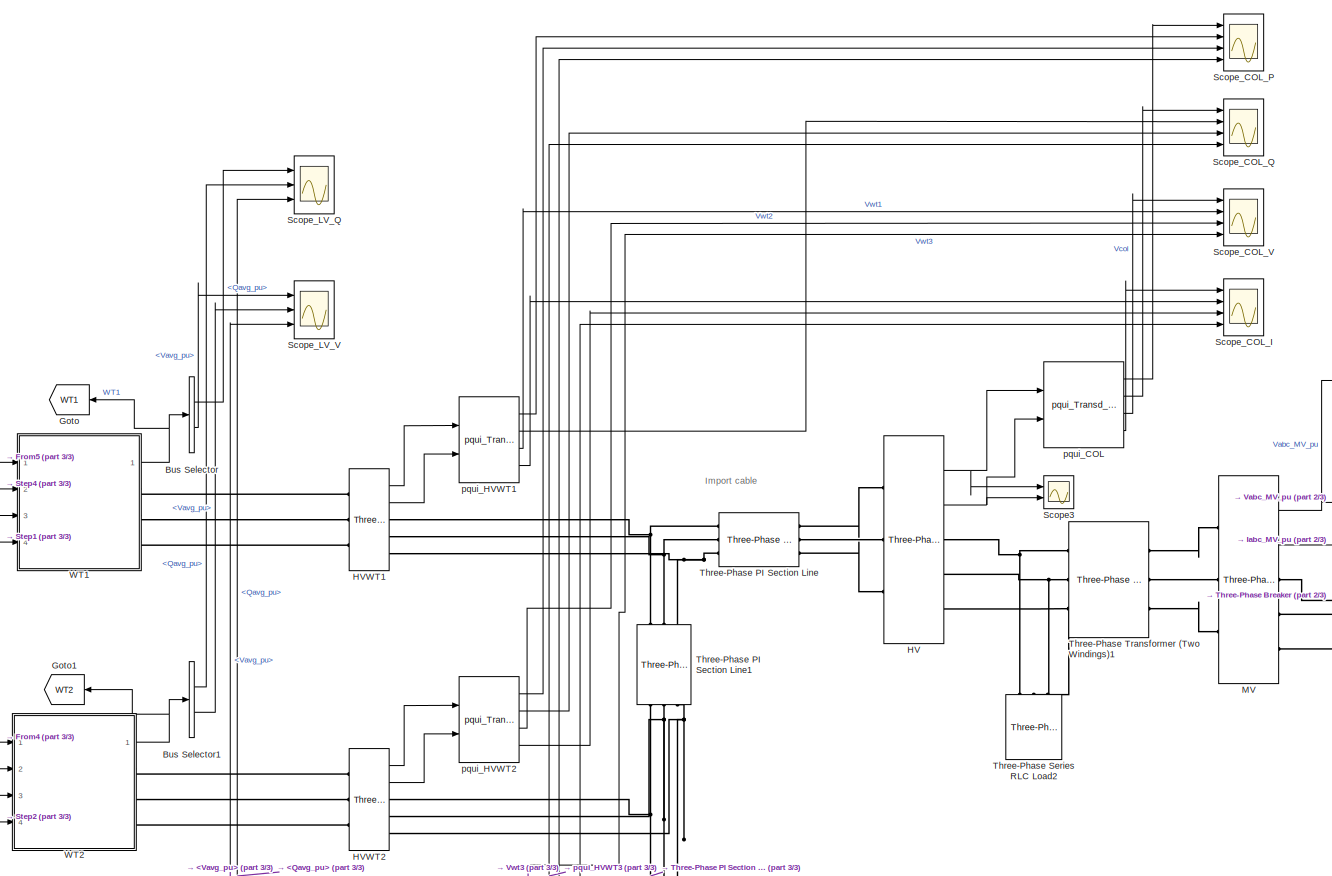
[diagram: root canvas - part 1/3, central region]
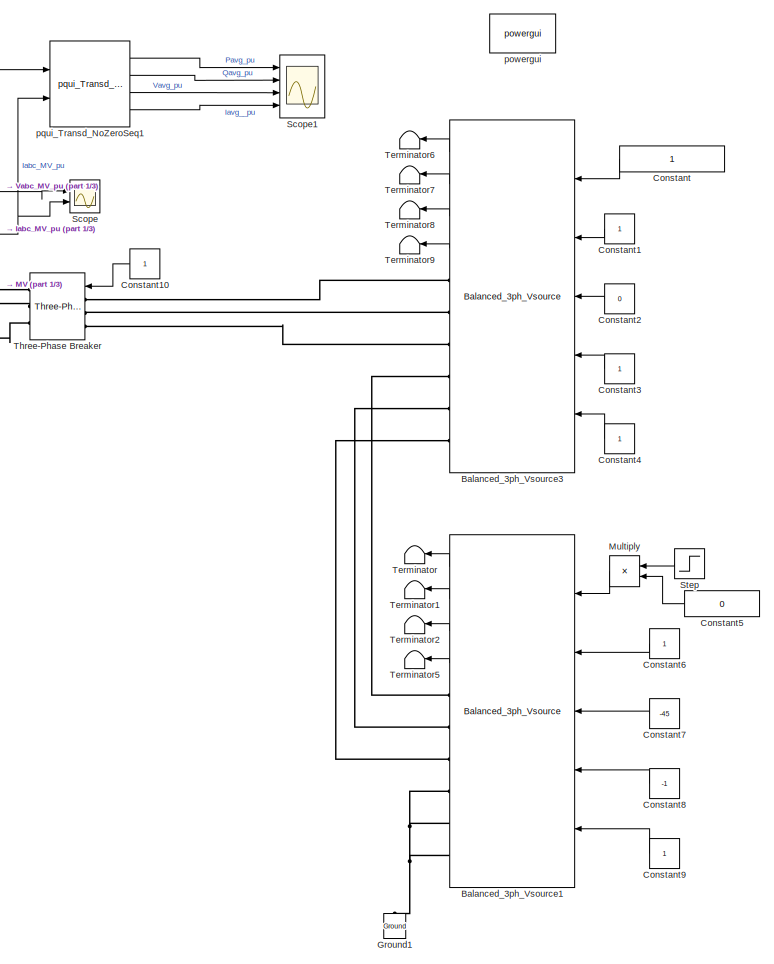
[diagram: root canvas - part 2/3, right side, full height]
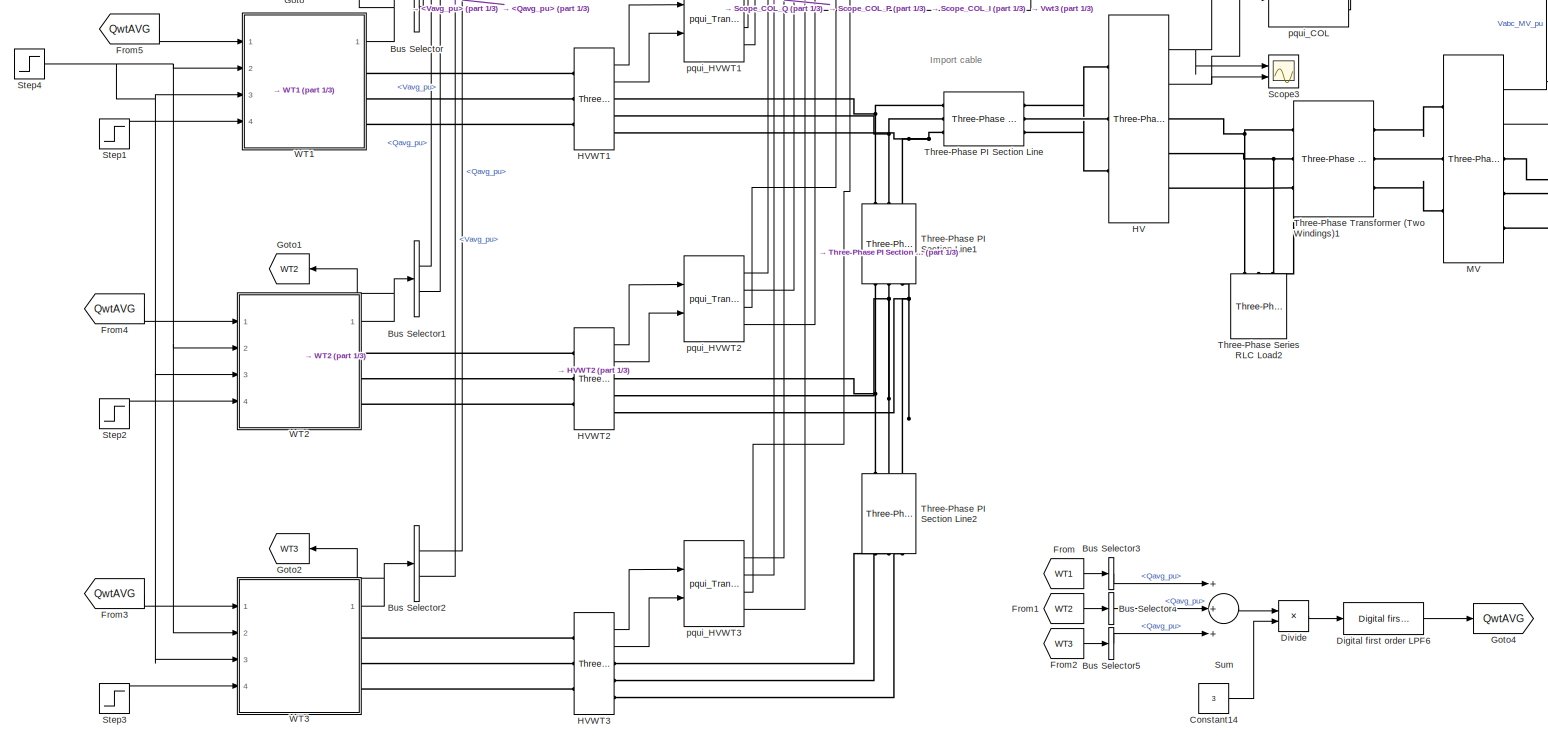
[diagram: root canvas - part 3/3, central region]
MODEL slx_7fccb065ce10
KIND model
CONFIG AbsTol = auto
CONFIG EnableMultiTasking = on
CONFIG FixedStep = Ts_phy
CONFIG MaxStep = auto
CONFIG MinStep = auto
CONFIG RelTol = 1e-3
CONFIG SampleTimeConstraint = Unconstrained
CONFIG Solver = ode5
CONFIG SolverName = ode5
CONFIG StartTime = 0.0
CONFIG StopTime = 8
BLOCK [Reference] Balanced_3ph_Vsource1  REF=pwrsysVSrc_202301/Balanced_3ph_Vsource
  Ports = [5, 4, 0, 0, 0, 0, 6]
  SourceBlock = pwrsysVSrc_202301/Balanced_3ph_Vsource
  SourceType = Three-phase balanced voltage source
BLOCK [Reference] Balanced_3ph_Vsource3  REF=pwrsysVSrc_202301/Balanced_3ph_Vsource
  Ports = [5, 4, 0, 0, 0, 0, 6]
  SourceBlock = pwrsysVSrc_202301/Balanced_3ph_Vsource
  SourceType = Three-phase balanced voltage source
BLOCK [BusSelector] Bus Selector
  OutputAsBus = off
  OutputSignals = Qavg_pu,Vavg_pu
  Ports = [1, 2]
BLOCK [BusSelector] Bus Selector1
  OutputAsBus = off
  OutputSignals = Qavg_pu,Vavg_pu
  Ports = [1, 2]
BLOCK [BusSelector] Bus Selector2
  OutputAsBus = off
  OutputSignals = Qavg_pu,Vavg_pu
  Ports = [1, 2]
BLOCK [BusSelector] Bus Selector3
  OutputAsBus = off
  OutputSignals = Qavg_pu
  Ports = [1, 1]
BLOCK [BusSelector] Bus Selector4
  OutputAsBus = off
  OutputSignals = Qavg_pu
  Ports = [1, 1]
BLOCK [BusSelector] Bus Selector5
  OutputAsBus = off
  OutputSignals = Qavg_pu
  Ports = [1, 1]
BLOCK [Constant] Constant
BLOCK [Constant] Constant1
BLOCK [Constant] Constant10
BLOCK [Constant] Constant14
  Value = 3
BLOCK [Constant] Constant2
  Value = 0
BLOCK [Constant] Constant3
BLOCK [Constant] Constant4
BLOCK [Constant] Constant5
  Value = 0
BLOCK [Constant] Constant6
BLOCK [Constant] Constant7
  Value = -45
BLOCK [Constant] Constant8
  Value = -1
BLOCK [Constant] Constant9
BLOCK [Reference] Digital first order LPF6  REF=pwrsysBasic/Digital first order LPF
  Ports = [1, 1]
  SourceBlock = pwrsysBasic/Digital first order LPF
  SourceProductName = NTNU Power Systems
  SourceType = Digital first-order low-pass filter
BLOCK [Product] Divide
  InputSameDT = off
  Inputs = */
  OutDataTypeStr = Inherit: Inherit via internal rule
  Ports = [2, 1]
  RndMeth = Floor
  SaturateOnIntegerOverflow = off
BLOCK [From] From
  GotoTag = WT1
BLOCK [From] From1
  GotoTag = WT2
BLOCK [From] From2
  GotoTag = WT3
BLOCK [From] From3
  GotoTag = QwtAVG
BLOCK [From] From4
  GotoTag = QwtAVG
BLOCK [From] From5
  GotoTag = QwtAVG
BLOCK [Goto] Goto
  GotoTag = WT1
BLOCK [Goto] Goto1
  GotoTag = WT2
BLOCK [Goto] Goto2
  GotoTag = WT3
BLOCK [Goto] Goto4
  GotoTag = QwtAVG
BLOCK [Reference] Ground1  REF=powerlib/Elements/Ground
  Ports = [0, 0, 0, 0, 0, 1]
  SourceBlock = powerlib/Elements/Ground
  SourceProductBaseCode = PS
  SourceProductName = Simscape Power Systems
  SourceType = Ground
BLOCK [Reference] HV  REF=powerlib/Measurements/Three-Phase
V-I Measurement
  Ports = [0, 2, 0, 0, 0, 3, 3]
  SourceBlock = powerlib/Measurements/Three-Phase\nV-I Measurement
  SourceProductBaseCode = PS
  SourceProductName = Simscape Power Systems
  SourceType = Three-Phase VI Measurement
BLOCK [Reference] HVWT1  REF=powerlib/Measurements/Three-Phase
V-I Measurement
  Ports = [0, 2, 0, 0, 0, 3, 3]
  SourceBlock = powerlib/Measurements/Three-Phase\nV-I Measurement
  SourceProductBaseCode = PS
  SourceProductName = Simscape Power Systems
  SourceType = Three-Phase VI Measurement
BLOCK [Reference] HVWT2  REF=powerlib/Measurements/Three-Phase
V-I Measurement
  Ports = [0, 2, 0, 0, 0, 3, 3]
  SourceBlock = powerlib/Measurements/Three-Phase\nV-I Measurement
  SourceProductBaseCode = PS
  SourceProductName = Simscape Power Systems
  SourceType = Three-Phase VI Measurement
BLOCK [Reference] HVWT3  REF=powerlib/Measurements/Three-Phase
V-I Measurement
  Ports = [0, 2, 0, 0, 0, 3, 3]
  SourceBlock = powerlib/Measurements/Three-Phase\nV-I Measurement
  SourceProductBaseCode = PS
  SourceProductName = Simscape Power Systems
  SourceType = Three-Phase VI Measurement
BLOCK [Reference] MV  REF=powerlib/Measurements/Three-Phase
V-I Measurement
  Ports = [0, 2, 0, 0, 0, 3, 3]
  SourceBlock = powerlib/Measurements/Three-Phase\nV-I Measurement
  SourceProductBaseCode = PS
  SourceProductName = Simscape Power Systems
  SourceType = Three-Phase VI Measurement
BLOCK [Product] Multiply
  InputSameDT = off
  OutDataTypeStr = Inherit: Inherit via internal rule
  Ports = [2, 1]
  RndMeth = Floor
  SaturateOnIntegerOverflow = off
BLOCK [Scope] Scope
  Floating = off
  NumInputPorts = 2
  Ports = [2]
  ScopeSpecificationString = Simulink.scopes.TimeScopeBlockCfg('CurrentConfiguration', extmgr.ConfigurationSet(extmgr.Configuration('Core','General UI',true),extmgr.Configuration('Core','Source UI',true),extmgr.Configuration('Sources','WiredSimulink',true,'DataLoggingVariableName','ScopeData5'),extmgr.Configuration('Visuals','Time Domain',true,'SerializedDisplays',{struct('MinYLimReal','8919.81545','MaxYLimReal','9047.54566',...<+2202ch>
BLOCK [Scope] Scope1
  Floating = off
  NumInputPorts = 4
  Ports = [4]
  ScopeSpecificationString = Simulink.scopes.TimeScopeBlockCfg('CurrentConfiguration', extmgr.ConfigurationSet(extmgr.Configuration('Core','General UI',true),extmgr.Configuration('Core','Source UI',true),extmgr.Configuration('Sources','WiredSimulink',true,'DataLoggingVariableName','ScopeData3'),extmgr.Configuration('Visuals','Time Domain',true,'SerializedDisplays',{struct('MinYLimReal','-1.68518','MaxYLimReal','1.29479','YLab...<+3452ch>
BLOCK [Scope] Scope3
  Floating = off
  NumInputPorts = 2
  Ports = [2]
  ScopeSpecificationString = Simulink.scopes.TimeScopeBlockCfg('CurrentConfiguration', extmgr.ConfigurationSet(extmgr.Configuration('Core','General UI',true),extmgr.Configuration('Core','Source UI',true),extmgr.Configuration('Sources','WiredSimulink',true,'DataLoggingVariableName','ScopeData6'),extmgr.Configuration('Visuals','Time Domain',true,'SerializedDisplays',{struct('MinYLimReal','-38206.09302','MaxYLimReal','37105.9074...<+2208ch>
BLOCK [Scope] Scope_COL_I
  Floating = off
  NumInputPorts = 4
  Ports = [4]
  ScopeSpecificationString = Simulink.scopes.TimeScopeBlockCfg('CurrentConfiguration', extmgr.ConfigurationSet(extmgr.Configuration('Core','General UI',true),extmgr.Configuration('Core','Source UI',true),extmgr.Configuration('Sources','WiredSimulink',true,'DataLoggingVariableName','ScopeData3'),extmgr.Configuration('Visuals','Time Domain',true,'SerializedDisplays',{struct('MinYLimReal','-0.17824','MaxYLimReal','1.60524','YLab...<+1488ch>
BLOCK [Scope] Scope_COL_P
  Floating = off
  NumInputPorts = 4
  Ports = [4]
  ScopeSpecificationString = Simulink.scopes.TimeScopeBlockCfg('CurrentConfiguration', extmgr.ConfigurationSet(extmgr.Configuration('Core','General UI',true),extmgr.Configuration('Core','Source UI',true),extmgr.Configuration('Sources','WiredSimulink',true,'DataLoggingVariableName','ScopeData2'),extmgr.Configuration('Visuals','Time Domain',true,'SerializedDisplays',{struct('MinYLimReal','-2.04343','MaxYLimReal','1.51241','YLab...<+1513ch>
BLOCK [Scope] Scope_COL_Q
  Floating = off
  NumInputPorts = 4
  Ports = [4]
  ScopeSpecificationString = Simulink.scopes.TimeScopeBlockCfg('CurrentConfiguration', extmgr.ConfigurationSet(extmgr.Configuration('Core','General UI',true),extmgr.Configuration('Core','Source UI',true),extmgr.Configuration('Sources','WiredSimulink',true,'DataLoggingVariableName','ScopeData1'),extmgr.Configuration('Visuals','Time Domain',true,'SerializedDisplays',{struct('MinYLimReal','-0.20492','MaxYLimReal','0.36706','YLab...<+1514ch>
BLOCK [Scope] Scope_COL_V
  Floating = off
  NumInputPorts = 4
  Ports = [4]
  ScopeSpecificationString = Simulink.scopes.TimeScopeBlockCfg('CurrentConfiguration', extmgr.ConfigurationSet(extmgr.Configuration('Core','General UI',true),extmgr.Configuration('Core','Source UI',true),extmgr.Configuration('Sources','WiredSimulink',true,'DataLoggingVariableName','ScopeData4'),extmgr.Configuration('Visuals','Time Domain',true,'SerializedDisplays',{struct('MinYLimReal','0.98061','MaxYLimReal','1.04144','YLabe...<+1481ch>
BLOCK [Scope] Scope_LV_Q
  Floating = off
  NumInputPorts = 3
  Ports = [3]
  ScopeSpecificationString = Simulink.scopes.TimeScopeBlockCfg('CurrentConfiguration', extmgr.ConfigurationSet(extmgr.Configuration('Core','General UI',true),extmgr.Configuration('Core','Source UI',true),extmgr.Configuration('Sources','WiredSimulink',true,'DataLoggingVariableName','ScopeData5'),extmgr.Configuration('Visuals','Time Domain',true,'SerializedDisplays',{struct('MinYLimReal','-0.20843','MaxYLimReal','0.27429','YLab...<+1491ch>
BLOCK [Scope] Scope_LV_V
  Floating = off
  NumInputPorts = 3
  Ports = [3]
  ScopeSpecificationString = Simulink.scopes.TimeScopeBlockCfg('CurrentConfiguration', extmgr.ConfigurationSet(extmgr.Configuration('Core','General UI',true),extmgr.Configuration('Core','Source UI',true),extmgr.Configuration('Sources','WiredSimulink',true,'DataLoggingVariableName','ScopeData6'),extmgr.Configuration('Visuals','Time Domain',true,'SerializedDisplays',{struct('MinYLimReal','0.94212','MaxYLimReal','1.09059','YLabe...<+1488ch>
BLOCK [Step] Step
  SampleTime = 0
  Time = 0.1
BLOCK [Step] Step1
  After = 0.8
  SampleTime = 0
  Time = wt1.DCVCont.Start+2.8
BLOCK [Step] Step2
  After = 0.8
  SampleTime = 0
  Time = wt1.DCVCont.Start+1.8
BLOCK [Step] Step3
  After = 0.8
  SampleTime = 0
  Time = wt1.DCVCont.Start+0.8
BLOCK [Step] Step4
  SampleTime = 0
  Time = 5
BLOCK [Sum] Sum
  InputSameDT = off
  Inputs = +++
  OutDataTypeStr = Inherit: Inherit via internal rule
  Ports = [3, 1]
  SaturateOnIntegerOverflow = off
BLOCK [Terminator] Terminator
BLOCK [Terminator] Terminator1
BLOCK [Terminator] Terminator2
BLOCK [Terminator] Terminator5
BLOCK [Terminator] Terminator6
BLOCK [Terminator] Terminator7
BLOCK [Terminator] Terminator8
BLOCK [Terminator] Terminator9
BLOCK [Reference] Three-Phase Breaker  REF=powerlib/Elements/Three-Phase Breaker
  Ports = [1, 0, 0, 0, 0, 3, 3]
  SourceBlock = powerlib/Elements/Three-Phase Breaker
  SourceProductBaseCode = PS
  SourceProductName = Simscape Power Systems
  SourceType = Three-Phase Breaker
BLOCK [Reference] Three-Phase PI Section Line  REF=powerlib/Elements/Three-Phase
PI Section Line
  AttributesFormatString = \n
  Ports = [0, 0, 0, 0, 0, 3, 3]
  SourceBlock = powerlib/Elements/Three-Phase\nPI Section Line
  SourceProductBaseCode = PS
  SourceProductName = Simscape Power Systems
  SourceType = Three-Phase PI Section Line
BLOCK [Reference] Three-Phase PI Section Line1  REF=powerlib/Elements/Three-Phase
PI Section Line
  AttributesFormatString = \n
  Ports = [0, 0, 0, 0, 0, 3, 3]
  SourceBlock = powerlib/Elements/Three-Phase\nPI Section Line
  SourceProductBaseCode = PS
  SourceProductName = Simscape Power Systems
  SourceType = Three-Phase PI Section Line
BLOCK [Reference] Three-Phase PI Section Line2  REF=powerlib/Elements/Three-Phase
PI Section Line
  AttributesFormatString = \n
  Ports = [0, 0, 0, 0, 0, 3, 3]
  SourceBlock = powerlib/Elements/Three-Phase\nPI Section Line
  SourceProductBaseCode = PS
  SourceProductName = Simscape Power Systems
  SourceType = Three-Phase PI Section Line
BLOCK [Reference] Three-Phase Series RLC Load2  REF=powerlib/Elements/Three-Phase
Series RLC Load
  AttributesFormatString = \n
  Ports = [0, 0, 0, 0, 0, 3]
  SourceBlock = powerlib/Elements/Three-Phase\nSeries RLC Load
  SourceProductBaseCode = PS
  SourceProductName = Simscape Power Systems
  SourceType = Three-Phase Series RLC Load
BLOCK [Reference] Three-Phase Transformer (Two Windings)1  REF=powerlib/Elements/Three-Phase
Transformer
(Two Windings)
  Ports = [0, 0, 0, 0, 0, 3, 3]
  SourceBlock = powerlib/Elements/Three-Phase\nTransformer\n(Two Windings)
  SourceProductBaseCode = PS
  SourceProductName = Simscape Power Systems
  SourceType = Three-Phase Transformer (Two Windings)
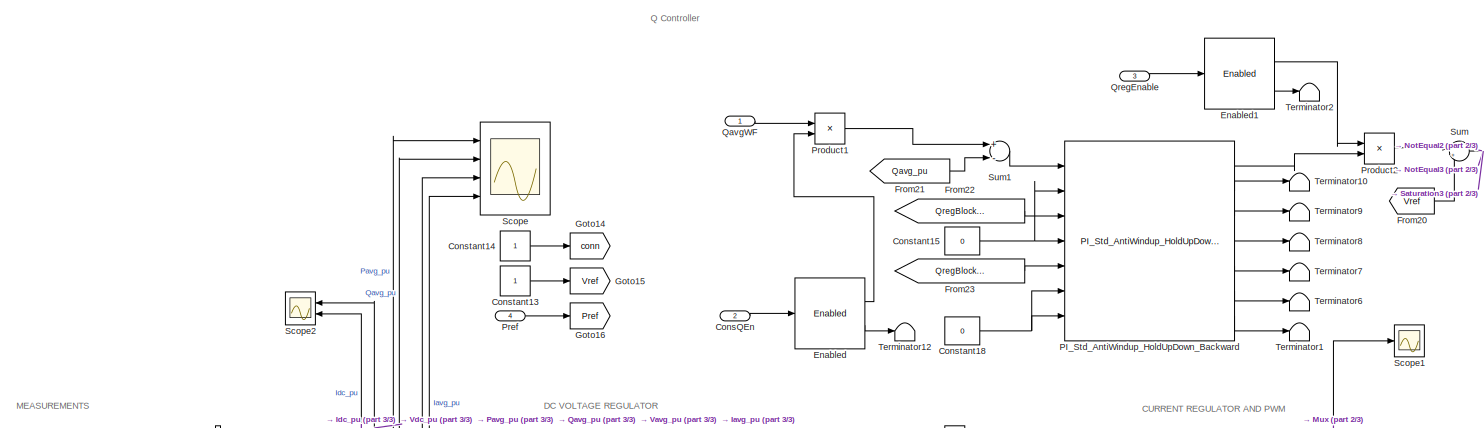
[diagram: WT1 - part 1/3, top center region]
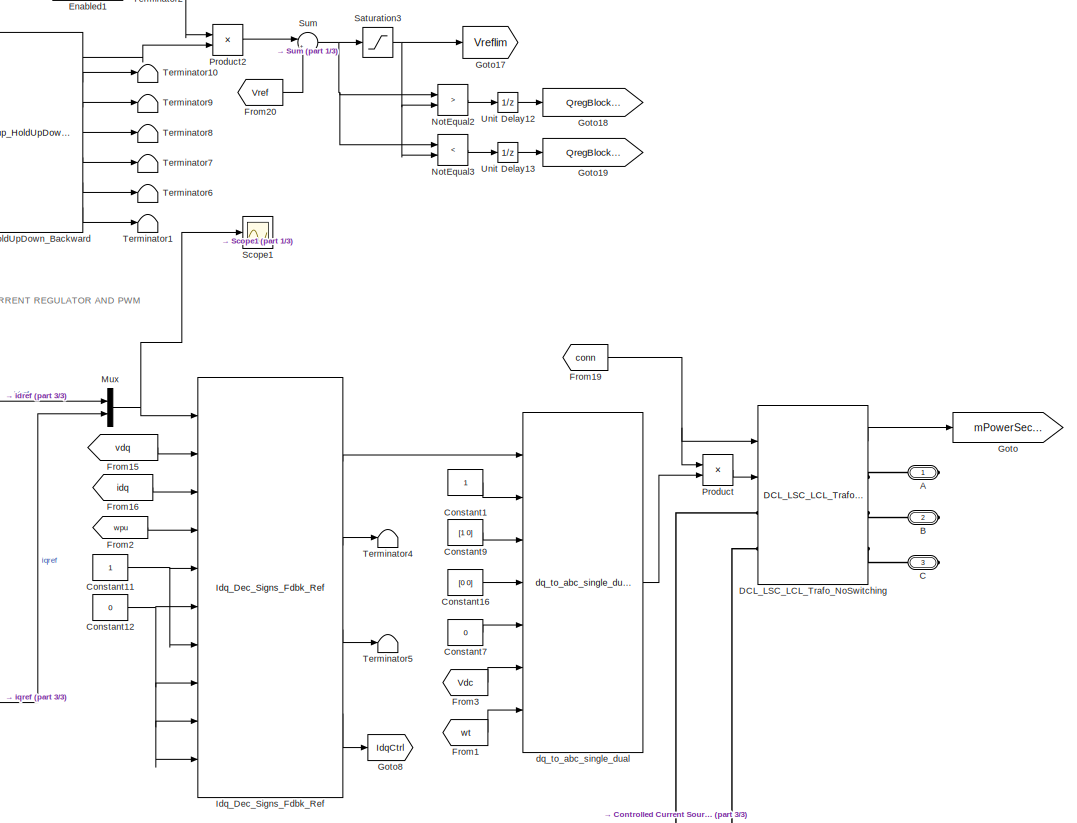
[diagram: WT1 - part 2/3, middle right region]
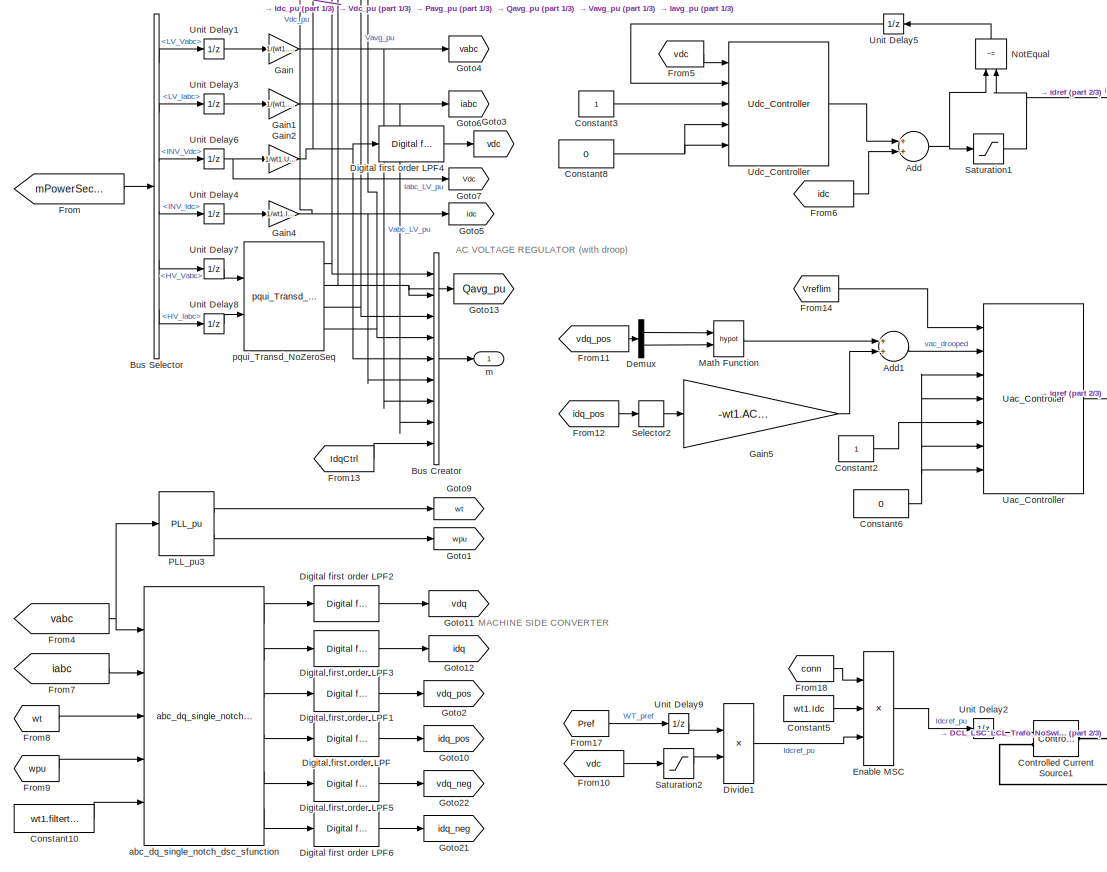
[diagram: WT1 - part 3/3, middle left region]
BLOCK [SubSystem] WT1
  Ports = [4, 1, 0, 0, 0, 0, 3]
  RequestExecContextInheritance = off
BLOCK [PMIOPort] WT1/A
  Side = Right
BLOCK [Sum] WT1/Add
  InputSameDT = off
  OutDataTypeStr = Inherit: Inherit via internal rule
  Ports = [2, 1]
  SaturateOnIntegerOverflow = off
BLOCK [Sum] WT1/Add1
  InputSameDT = off
  OutDataTypeStr = Inherit: Inherit via internal rule
  Ports = [2, 1]
  SaturateOnIntegerOverflow = off
BLOCK [PMIOPort] WT1/B
  Port = 2
  Side = Right
BLOCK [BusCreator] WT1/Bus Creator
  DisplayOption = bar
  InheritFromInputs = on
  Inputs = 9
  Ports = [9, 1]
BLOCK [BusSelector] WT1/Bus Selector
  OutputAsBus = off
  OutputSignals = LV_Vabc,LV_Iabc,INV_Vdc,INV_Idc,HV_Vabc,HV_Iabc
  Ports = [1, 6]
BLOCK [PMIOPort] WT1/C
  Port = 3
  Side = Right
BLOCK [Inport] WT1/ConsQEn
  IconDisplay = Port number
  Port = 2
BLOCK [Constant] WT1/Constant1
  SampleTime = wt1.Ts_control
BLOCK [Constant] WT1/Constant10
  SampleTime = wt1.Ts_control
  Value = wt1.filtertype
BLOCK [Constant] WT1/Constant11
  SampleTime = wt1.Ts_control
BLOCK [Constant] WT1/Constant12
  SampleTime = wt1.Ts_control
  Value = 0
BLOCK [Constant] WT1/Constant13
BLOCK [Constant] WT1/Constant14
BLOCK [Constant] WT1/Constant15
  Value = 0
BLOCK [Constant] WT1/Constant16
  SampleTime = wt1.Ts_control
  Value = [0 0]
BLOCK [Constant] WT1/Constant18
  Value = 0
BLOCK [Constant] WT1/Constant2
  SampleTime = wt1.Ts_control
BLOCK [Constant] WT1/Constant3
  SampleTime = wt1.Ts_control
BLOCK [Constant] WT1/Constant5
  SampleTime = wt1.Ts_control
  Value = wt1.Idc
BLOCK [Constant] WT1/Constant6
  SampleTime = wt1.Ts_control
  Value = 0
BLOCK [Constant] WT1/Constant7
  SampleTime = wt1.Ts_control
  Value = 0
BLOCK [Constant] WT1/Constant8
  SampleTime = wt1.Ts_control
  Value = 0
BLOCK [Constant] WT1/Constant9
  SampleTime = wt1.Ts_control
  Value = [1 0]
BLOCK [Reference] WT1/Controlled Current Source1  REF=powerlib/Electrical
Sources/Controlled Current Source
  Ports = [1, 0, 0, 0, 0, 1, 1]
  SourceBlock = powerlib/Electrical\nSources/Controlled Current Source
  SourceProductBaseCode = PS
  SourceProductName = Simscape Power Systems
  SourceType = Controlled Current Source
BLOCK [Reference] WT1/DCL_LSC_LCL_Trafo_NoSwitching  REF=pwrsysVSrc/DCL_LSC_LCL_Trafo_NoSwitching
  Ports = [2, 1, 0, 0, 0, 2, 3]
  SourceBlock = pwrsysVSrc/DCL_LSC_LCL_Trafo_NoSwitching
  SourceProductName = NTNU Power Systems
  SourceType = DCL + LSC + LCL + Trafo
BLOCK [Demux] WT1/Demux
  DisplayOption = bar
  Outputs = 2
  Ports = [1, 2]
BLOCK [Reference] WT1/Digital first order LPF  REF=pwrsysBasic/Digital first order LPF
  Ports = [1, 1]
  SourceBlock = pwrsysBasic/Digital first order LPF
  SourceProductName = NTNU Power Systems
  SourceType = Digital first-order low-pass filter
BLOCK [Reference] WT1/Digital first order LPF1  REF=pwrsysBasic/Digital first order LPF
  Ports = [1, 1]
  SourceBlock = pwrsysBasic/Digital first order LPF
  SourceProductName = NTNU Power Systems
  SourceType = Digital first-order low-pass filter
BLOCK [Reference] WT1/Digital first order LPF2  REF=pwrsysBasic/Digital first order LPF
  Ports = [1, 1]
  SourceBlock = pwrsysBasic/Digital first order LPF
  SourceProductName = NTNU Power Systems
  SourceType = Digital first-order low-pass filter
BLOCK [Reference] WT1/Digital first order LPF3  REF=pwrsysBasic/Digital first order LPF
  Ports = [1, 1]
  SourceBlock = pwrsysBasic/Digital first order LPF
  SourceProductName = NTNU Power Systems
  SourceType = Digital first-order low-pass filter
BLOCK [Reference] WT1/Digital first order LPF4  REF=pwrsysBasic/Digital first order LPF
  Ports = [1, 1]
  SourceBlock = pwrsysBasic/Digital first order LPF
  SourceProductName = NTNU Power Systems
  SourceType = Digital first-order low-pass filter
BLOCK [Reference] WT1/Digital first order LPF5  REF=pwrsysBasic/Digital first order LPF
  Commented = on
  Ports = [1, 1]
  SourceBlock = pwrsysBasic/Digital first order LPF
  SourceProductName = NTNU Power Systems
  SourceType = Digital first-order low-pass filter
BLOCK [Reference] WT1/Digital first order LPF6  REF=pwrsysBasic/Digital first order LPF
  Commented = on
  Ports = [1, 1]
  SourceBlock = pwrsysBasic/Digital first order LPF
  SourceProductName = NTNU Power Systems
  SourceType = Digital first-order low-pass filter
BLOCK [Product] WT1/Divide1
  InputSameDT = off
  Inputs = */
  OutDataTypeStr = Inherit: Inherit via internal rule
  Ports = [2, 1]
  RndMeth = Floor
  SaturateOnIntegerOverflow = off
BLOCK [Product] WT1/Enable MSC
  InputSameDT = off
  Inputs = 3
  OutDataTypeStr = Inherit: Inherit via internal rule
  Ports = [3, 1]
  RndMeth = Floor
  SaturateOnIntegerOverflow = off
BLOCK [Reference] WT1/Enabled  REF=pwrsysBasic/Enabled
  Ports = [1, 2]
  SourceBlock = pwrsysBasic/Enabled
  SourceProductName = NTNU Power Systems
  SourceType = Enabled block
BLOCK [Reference] WT1/Enabled1  REF=pwrsysBasic/Enabled
  Ports = [1, 2]
  SourceBlock = pwrsysBasic/Enabled
  SourceProductName = NTNU Power Systems
  SourceType = Enabled block
BLOCK [From] WT1/From
  GotoTag = mPowerSection
BLOCK [From] WT1/From1
  GotoTag = wt
BLOCK [From] WT1/From10
  GotoTag = vdc
BLOCK [From] WT1/From11
  GotoTag = vdq_pos
BLOCK [From] WT1/From12
  GotoTag = idq_pos
BLOCK [From] WT1/From13
  GotoTag = IdqCtrl
BLOCK [From] WT1/From14
  GotoTag = Vreflim
BLOCK [From] WT1/From15
  GotoTag = vdq
BLOCK [From] WT1/From16
  GotoTag = idq
BLOCK [From] WT1/From17
  GotoTag = Pref
BLOCK [From] WT1/From18
  GotoTag = conn
BLOCK [From] WT1/From19
  GotoTag = conn
BLOCK [From] WT1/From2
  GotoTag = wpu
BLOCK [From] WT1/From20
  GotoTag = Vref
BLOCK [From] WT1/From21
  GotoTag = Qavg_pu
BLOCK [From] WT1/From22
  GotoTag = QregBlockUp
BLOCK [From] WT1/From23
  GotoTag = QregBlockDown
BLOCK [From] WT1/From3
  GotoTag = Vdc
BLOCK [From] WT1/From4
  GotoTag = vabc
BLOCK [From] WT1/From5
  GotoTag = vdc
BLOCK [From] WT1/From6
  GotoTag = idc
BLOCK [From] WT1/From7
  GotoTag = iabc
BLOCK [From] WT1/From8
  GotoTag = wt
BLOCK [From] WT1/From9
  GotoTag = wpu
BLOCK [Gain] WT1/Gain
  Gain = 1/(wt1.Uanp)
  OutDataTypeStr = Inherit: Inherit via internal rule
  ParamDataTypeStr = Inherit: Inherit via internal rule
  SaturateOnIntegerOverflow = off
BLOCK [Gain] WT1/Gain1
  Gain = 1/(wt1.Iap)
  OutDataTypeStr = Inherit: Inherit via internal rule
  ParamDataTypeStr = Inherit: Inherit via internal rule
  SaturateOnIntegerOverflow = off
BLOCK [Gain] WT1/Gain2
  Gain = 1/wt1.Udc
  OutDataTypeStr = Inherit: Inherit via internal rule
  ParamDataTypeStr = Inherit: Inherit via internal rule
  SaturateOnIntegerOverflow = off
BLOCK [Gain] WT1/Gain4
  Gain = 1/wt1.Idc
  OutDataTypeStr = Inherit: Inherit via internal rule
  ParamDataTypeStr = Inherit: Inherit via internal rule
  SaturateOnIntegerOverflow = off
BLOCK [Gain] WT1/Gain5
  Gain = -wt1.ACVCont.kiq_droop
  OutDataTypeStr = Inherit: Inherit via internal rule
  ParamDataTypeStr = Inherit: Inherit via internal rule
  SaturateOnIntegerOverflow = off
BLOCK [Goto] WT1/Goto
  GotoTag = mPowerSection
BLOCK [Goto] WT1/Goto1
  GotoTag = wpu
BLOCK [Goto] WT1/Goto10
  GotoTag = idq_pos
BLOCK [Goto] WT1/Goto11
  GotoTag = vdq
BLOCK [Goto] WT1/Goto12
  GotoTag = idq
BLOCK [Goto] WT1/Goto13
  GotoTag = Qavg_pu
BLOCK [Goto] WT1/Goto14
  GotoTag = conn
BLOCK [Goto] WT1/Goto15
  GotoTag = Vref
BLOCK [Goto] WT1/Goto16
  GotoTag = Pref
BLOCK [Goto] WT1/Goto17
  GotoTag = Vreflim
BLOCK [Goto] WT1/Goto18
  GotoTag = QregBlockUp
BLOCK [Goto] WT1/Goto19
  GotoTag = QregBlockDown
BLOCK [Goto] WT1/Goto2
  GotoTag = vdq_pos
BLOCK [Goto] WT1/Goto21
  Commented = on
  GotoTag = idq_neg
BLOCK [Goto] WT1/Goto22
  Commented = on
  GotoTag = vdq_neg
BLOCK [Goto] WT1/Goto3
  GotoTag = vdc
BLOCK [Goto] WT1/Goto4
  GotoTag = vabc
BLOCK [Goto] WT1/Goto5
  GotoTag = idc
BLOCK [Goto] WT1/Goto6
  GotoTag = iabc
BLOCK [Goto] WT1/Goto7
  GotoTag = Vdc
BLOCK [Goto] WT1/Goto8
  GotoTag = IdqCtrl
BLOCK [Goto] WT1/Goto9
  GotoTag = wt
BLOCK [Reference] WT1/Idq_Dec_Signs_Fdbk_Ref  REF=pwrsysVICtrl/Idq_Dec_Signs_Fdbk_Ref
  Ports = [10, 4]
  SourceBlock = pwrsysVICtrl/Idq_Dec_Signs_Fdbk_Ref
  SourceProductName = NTNU Power Systems
  SourceType = Idq Controller - PI regulator with anti-windup
BLOCK [Math] WT1/Math Function
  Operator = hypot
  Ports = [2, 1]
BLOCK [Mux] WT1/Mux
  DisplayOption = bar
  Inputs = 2
  Ports = [2, 1]
BLOCK [RelationalOperator] WT1/NotEqual
  InputSameDT = off
  Operator = ~=
  OutDataTypeStr = boolean
  Ports = [2, 1]
BLOCK [RelationalOperator] WT1/NotEqual2
  InputSameDT = off
  Operator = >
  OutDataTypeStr = boolean
  Ports = [2, 1]
BLOCK [RelationalOperator] WT1/NotEqual3
  InputSameDT = off
  Operator = <
  OutDataTypeStr = boolean
  Ports = [2, 1]
BLOCK [Reference] WT1/PI_Std_AntiWindup_HoldUpDown_Backward  REF=pwrsysBasic/PI_Std_AntiWindup_HoldUpDown_Backward
  Ports = [7, 7]
  SourceBlock = pwrsysBasic/PI_Std_AntiWindup_HoldUpDown_Backward
  SourceProductName = NTNU Power Systems
  SourceType = PI regulator with anti-windup
BLOCK [Reference] WT1/PLL_pu3  REF=pwrsysBasic/PLL_pu
  Ports = [1, 2]
  SourceBlock = pwrsysBasic/PLL_pu
  SourceProductName = NTNU Power Systems
  SourceType = Matlabs PLL with POS and NEG omega t output
BLOCK [Inport] WT1/Pref
  IconDisplay = Port number
  Port = 4
BLOCK [Product] WT1/Product
  InputSameDT = off
  OutDataTypeStr = Inherit: Inherit via internal rule
  Ports = [2, 1]
  RndMeth = Floor
  SaturateOnIntegerOverflow = off
BLOCK [Product] WT1/Product1
  InputSameDT = off
  OutDataTypeStr = Inherit: Inherit via internal rule
  Ports = [2, 1]
  RndMeth = Floor
  SaturateOnIntegerOverflow = off
BLOCK [Product] WT1/Product2
  InputSameDT = off
  OutDataTypeStr = Inherit: Inherit via internal rule
  Ports = [2, 1]
  RndMeth = Floor
  SaturateOnIntegerOverflow = off
BLOCK [Inport] WT1/QavgWF
  IconDisplay = Port number
BLOCK [Inport] WT1/QregEnable
  IconDisplay = Port number
  Port = 3
BLOCK [Saturate] WT1/Saturation1
  InputPortMap = u0
  LowerLimit = wt1.DCVCont.PImin
  Ports = [1, 1]
  UpperLimit = wt1.DCVCont.PImax
BLOCK [Saturate] WT1/Saturation2
  InputPortMap = u0
  LowerLimit = 0.8
  Ports = [1, 1]
  UpperLimit = 1.2
BLOCK [Saturate] WT1/Saturation3
  InputPortMap = u0
  LowerLimit = wt1.Qctrl.Umin
  Ports = [1, 1]
  UpperLimit = wt1.Qctrl.Umax
BLOCK [Scope] WT1/Scope
  Floating = off
  NumInputPorts = 4
  Ports = [4]
  ScopeSpecificationString = Simulink.scopes.TimeScopeBlockCfg('CurrentConfiguration', extmgr.ConfigurationSet(extmgr.Configuration('Core','General UI',true),extmgr.Configuration('Core','Source UI',true),extmgr.Configuration('Sources','WiredSimulink',true,'DataLoggingVariableName','ScopeData1'),extmgr.Configuration('Visuals','Time Domain',true,'SerializedDisplays',{struct('MinYLimReal','-1.93331','MaxYLimReal','1.52349','YLab...<+3488ch>  <repeated x3 — deduplicated; at blocks: Scope>
BLOCK [Scope] WT1/Scope1
  Floating = off
  NumInputPorts = 1
  Ports = [1]
  ScopeSpecificationString = Simulink.scopes.TimeScopeBlockCfg('CurrentConfiguration', extmgr.ConfigurationSet(extmgr.Configuration('Core','General UI',true),extmgr.Configuration('Core','Source UI',true),extmgr.Configuration('Sources','WiredSimulink',true,'DataLoggingVariableName','ScopeData2'),extmgr.Configuration('Visuals','Time Domain',true,'SerializedDisplays',{struct('MinYLimReal','-1.81947','MaxYLimReal','1.37521','YLab...<+1425ch>
BLOCK [Scope] WT1/Scope2
  Floating = off
  NumInputPorts = 2
  Ports = [2]
  ScopeSpecificationString = Simulink.scopes.TimeScopeBlockCfg('CurrentConfiguration', extmgr.ConfigurationSet(extmgr.Configuration('Core','General UI',true),extmgr.Configuration('Core','Source UI',true),extmgr.Configuration('Sources','WiredSimulink',true,'DataLoggingVariableName','ScopeData4'),extmgr.Configuration('Visuals','Time Domain',true,'SerializedDisplays',{struct('MinYLimReal','-0.1319','MaxYLimReal','1.18714','YLabe...<+1399ch>
BLOCK [Selector] WT1/Selector2
  IndexMode = Zero-based
  IndexOptions = Index vector (dialog)
  Indices = 1
  InputPortWidth = 2
  OutputSizes = 1
  Ports = [1, 1]
BLOCK [Sum] WT1/Sum
  IconShape = round
  InputSameDT = off
  Inputs = |++
  OutDataTypeStr = Inherit: Inherit via internal rule
  Ports = [2, 1]
  SaturateOnIntegerOverflow = off
BLOCK [Sum] WT1/Sum1
  InputSameDT = off
  Inputs = +-
  OutDataTypeStr = Inherit: Inherit via internal rule
  Ports = [2, 1]
  SaturateOnIntegerOverflow = off
BLOCK [Terminator] WT1/Terminator1
BLOCK [Terminator] WT1/Terminator10
BLOCK [Terminator] WT1/Terminator12
BLOCK [Terminator] WT1/Terminator2
BLOCK [Terminator] WT1/Terminator4
BLOCK [Terminator] WT1/Terminator5
BLOCK [Terminator] WT1/Terminator6
BLOCK [Terminator] WT1/Terminator7
BLOCK [Terminator] WT1/Terminator8
BLOCK [Terminator] WT1/Terminator9
BLOCK [Reference] WT1/Uac_Controller  REF=pwrsysVICtrl/Uac_Controller
  Ports = [7, 1]
  SourceBlock = pwrsysVICtrl/Uac_Controller
  SourceProductName = NTNU Power Systems
  SourceType = Udc Controller - PI regulator with anti-windup
BLOCK [Reference] WT1/Udc_Controller  REF=pwrsysVICtrl/Udc_Controller
  Ports = [5, 1]
  SourceBlock = pwrsysVICtrl/Udc_Controller
  SourceProductName = NTNU Power Systems
  SourceType = Udc Controller - PI regulator with anti-windup
BLOCK [UnitDelay] WT1/Unit Delay1
  InitialCondition = [0 0 0]
  InputProcessing = Elements as channels (sample based)
  SampleTime = wt1.Ts_control
BLOCK [UnitDelay] WT1/Unit Delay12
  InputProcessing = Elements as channels (sample based)
  SampleTime = wt1.Ts_control
BLOCK [UnitDelay] WT1/Unit Delay13
  InputProcessing = Elements as channels (sample based)
  SampleTime = wt1.Ts_control
BLOCK [UnitDelay] WT1/Unit Delay2
  InputProcessing = Elements as channels (sample based)
  SampleTime = wt1.Ts_control
BLOCK [UnitDelay] WT1/Unit Delay3
  InitialCondition = [0 0 0]
  InputProcessing = Elements as channels (sample based)
  SampleTime = wt1.Ts_control
BLOCK [UnitDelay] WT1/Unit Delay4
  InputProcessing = Elements as channels (sample based)
  SampleTime = wt1.Ts_control
BLOCK [UnitDelay] WT1/Unit Delay5
  InputProcessing = Elements as channels (sample based)
  SampleTime = wt1.Ts_control
BLOCK [UnitDelay] WT1/Unit Delay6
  InitialCondition = 1
  InputProcessing = Elements as channels (sample based)
  SampleTime = wt1.Ts_control
BLOCK [UnitDelay] WT1/Unit Delay7
  InitialCondition = [0 0 0]
  InputProcessing = Elements as channels (sample based)
  SampleTime = wt1.Ts_control
BLOCK [UnitDelay] WT1/Unit Delay8
  InitialCondition = [0 0 0]
  InputProcessing = Elements as channels (sample based)
  SampleTime = wt1.Ts_control
BLOCK [UnitDelay] WT1/Unit Delay9
  InputProcessing = Elements as channels (sample based)
  SampleTime = wt1.Ts_control
BLOCK [Reference] WT1/abc_dq_single_notch_dsc_sfunction  REF=pwrsysTransf/abc_dq_single_notch_dsc_sfunction
  Ports = [5, 6]
  SourceBlock = pwrsysTransf/abc_dq_single_notch_dsc_sfunction
  SourceProductName = NTNU Power Systems
  SourceType = abc->dq with Matlab
BLOCK [Reference] WT1/dq_to_abc_single_dual  REF=pwrsysVICtrl/dq_to_abc_single_dual
  Ports = [7, 1]
  SourceBlock = pwrsysVICtrl/dq_to_abc_single_dual
  SourceProductName = NTNU Power Systems
  SourceType = Scaling of vdq ref and PWM gate generation
BLOCK [Outport] WT1/m
  IconDisplay = Port number
BLOCK [Reference] WT1/pqui_Transd_NoZeroSeq  REF=pwrsysBasic/pqui_Transd_NoZeroSeq
  Ports = [2, 4]
  SourceBlock = pwrsysBasic/pqui_Transd_NoZeroSeq
  SourceProductName = NTNU Power Systems
  SourceType = u i p q transducer - No zero sequence
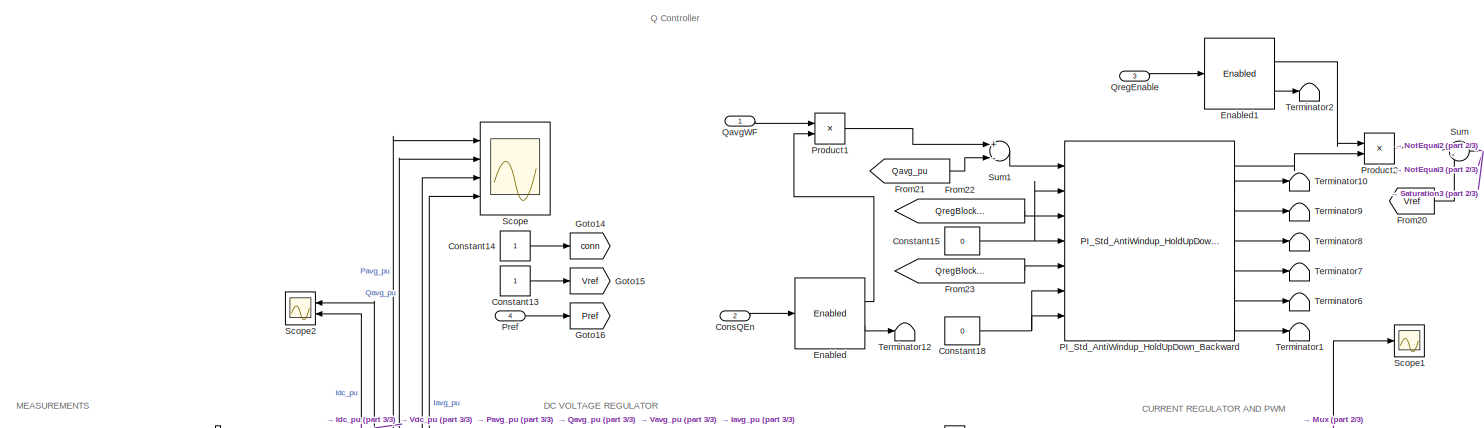
[diagram: WT2 - part 1/3, top center region]
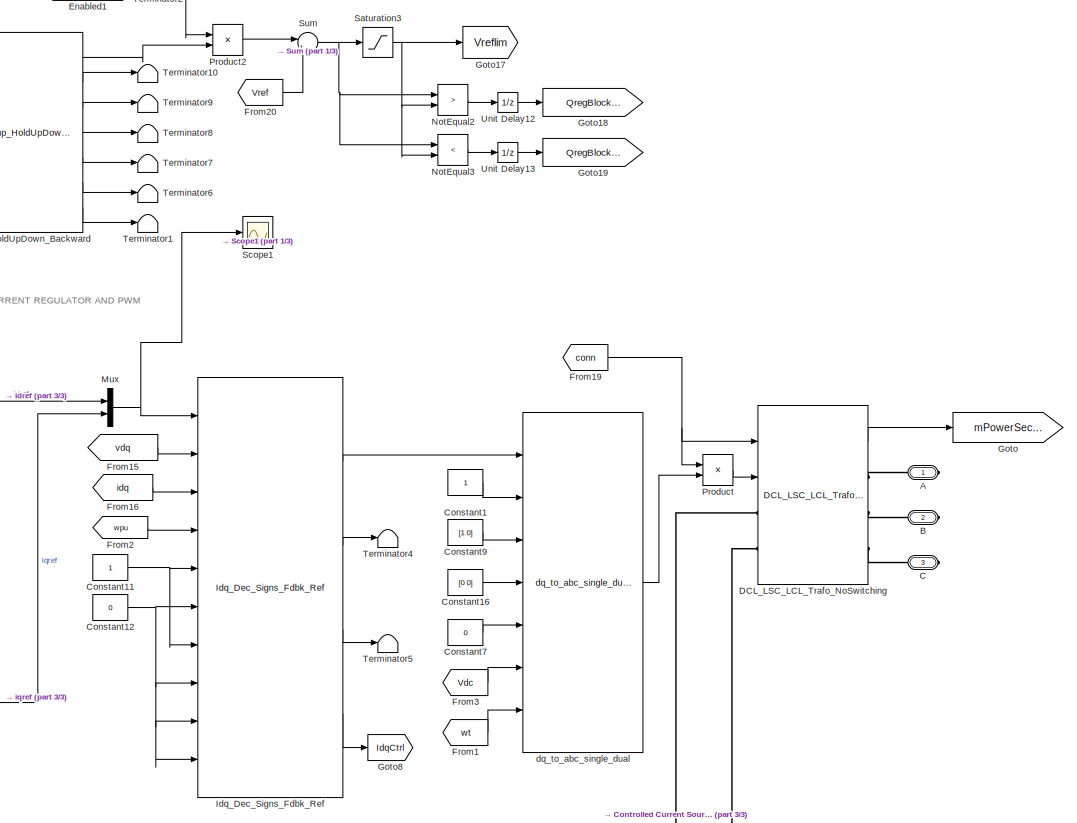
[diagram: WT2 - part 2/3, middle right region]
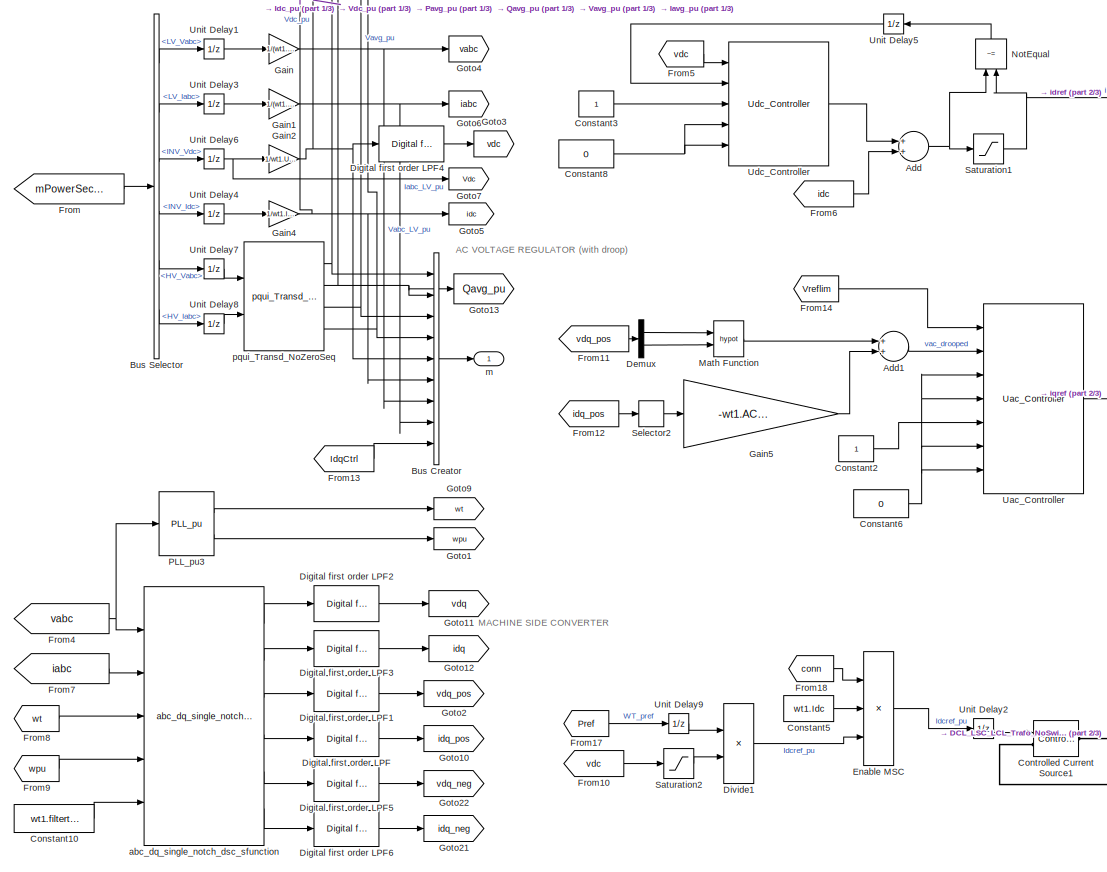
[diagram: WT2 - part 3/3, middle left region]
BLOCK [SubSystem] WT2
  Ports = [4, 1, 0, 0, 0, 0, 3]
  RequestExecContextInheritance = off
BLOCK [PMIOPort] WT2/A
  Side = Right
BLOCK [Sum] WT2/Add
  InputSameDT = off
  OutDataTypeStr = Inherit: Inherit via internal rule
  Ports = [2, 1]
  SaturateOnIntegerOverflow = off
BLOCK [Sum] WT2/Add1
  InputSameDT = off
  OutDataTypeStr = Inherit: Inherit via internal rule
  Ports = [2, 1]
  SaturateOnIntegerOverflow = off
BLOCK [PMIOPort] WT2/B
  Port = 2
  Side = Right
BLOCK [BusCreator] WT2/Bus Creator
  DisplayOption = bar
  InheritFromInputs = on
  Inputs = 9
  Ports = [9, 1]
BLOCK [BusSelector] WT2/Bus Selector
  OutputAsBus = off
  OutputSignals = LV_Vabc,LV_Iabc,INV_Vdc,INV_Idc,HV_Vabc,HV_Iabc
  Ports = [1, 6]
BLOCK [PMIOPort] WT2/C
  Port = 3
  Side = Right
BLOCK [Inport] WT2/ConsQEn
  IconDisplay = Port number
  Port = 2
BLOCK [Constant] WT2/Constant1
  SampleTime = wt1.Ts_control
BLOCK [Constant] WT2/Constant10
  SampleTime = wt1.Ts_control
  Value = wt1.filtertype
BLOCK [Constant] WT2/Constant11
  SampleTime = wt1.Ts_control
BLOCK [Constant] WT2/Constant12
  SampleTime = wt1.Ts_control
  Value = 0
BLOCK [Constant] WT2/Constant13
BLOCK [Constant] WT2/Constant14
BLOCK [Constant] WT2/Constant15
  Value = 0
BLOCK [Constant] WT2/Constant16
  SampleTime = wt1.Ts_control
  Value = [0 0]
BLOCK [Constant] WT2/Constant18
  Value = 0
BLOCK [Constant] WT2/Constant2
  SampleTime = wt1.Ts_control
BLOCK [Constant] WT2/Constant3
  SampleTime = wt1.Ts_control
BLOCK [Constant] WT2/Constant5
  SampleTime = wt1.Ts_control
  Value = wt1.Idc
BLOCK [Constant] WT2/Constant6
  SampleTime = wt1.Ts_control
  Value = 0
BLOCK [Constant] WT2/Constant7
  SampleTime = wt1.Ts_control
  Value = 0
BLOCK [Constant] WT2/Constant8
  SampleTime = wt1.Ts_control
  Value = 0
BLOCK [Constant] WT2/Constant9
  SampleTime = wt1.Ts_control
  Value = [1 0]
BLOCK [Reference] WT2/Controlled Current Source1  REF=powerlib/Electrical
Sources/Controlled Current Source
  Ports = [1, 0, 0, 0, 0, 1, 1]
  SourceBlock = powerlib/Electrical\nSources/Controlled Current Source
  SourceProductBaseCode = PS
  SourceProductName = Simscape Power Systems
  SourceType = Controlled Current Source
BLOCK [Reference] WT2/DCL_LSC_LCL_Trafo_NoSwitching  REF=pwrsysVSrc/DCL_LSC_LCL_Trafo_NoSwitching
  Ports = [2, 1, 0, 0, 0, 2, 3]
  SourceBlock = pwrsysVSrc/DCL_LSC_LCL_Trafo_NoSwitching
  SourceProductName = NTNU Power Systems
  SourceType = DCL + LSC + LCL + Trafo
BLOCK [Demux] WT2/Demux
  DisplayOption = bar
  Outputs = 2
  Ports = [1, 2]
BLOCK [Reference] WT2/Digital first order LPF  REF=pwrsysBasic/Digital first order LPF
  Ports = [1, 1]
  SourceBlock = pwrsysBasic/Digital first order LPF
  SourceProductName = NTNU Power Systems
  SourceType = Digital first-order low-pass filter
BLOCK [Reference] WT2/Digital first order LPF1  REF=pwrsysBasic/Digital first order LPF
  Ports = [1, 1]
  SourceBlock = pwrsysBasic/Digital first order LPF
  SourceProductName = NTNU Power Systems
  SourceType = Digital first-order low-pass filter
BLOCK [Reference] WT2/Digital first order LPF2  REF=pwrsysBasic/Digital first order LPF
  Ports = [1, 1]
  SourceBlock = pwrsysBasic/Digital first order LPF
  SourceProductName = NTNU Power Systems
  SourceType = Digital first-order low-pass filter
BLOCK [Reference] WT2/Digital first order LPF3  REF=pwrsysBasic/Digital first order LPF
  Ports = [1, 1]
  SourceBlock = pwrsysBasic/Digital first order LPF
  SourceProductName = NTNU Power Systems
  SourceType = Digital first-order low-pass filter
BLOCK [Reference] WT2/Digital first order LPF4  REF=pwrsysBasic/Digital first order LPF
  Ports = [1, 1]
  SourceBlock = pwrsysBasic/Digital first order LPF
  SourceProductName = NTNU Power Systems
  SourceType = Digital first-order low-pass filter
BLOCK [Reference] WT2/Digital first order LPF5  REF=pwrsysBasic/Digital first order LPF
  Commented = on
  Ports = [1, 1]
  SourceBlock = pwrsysBasic/Digital first order LPF
  SourceProductName = NTNU Power Systems
  SourceType = Digital first-order low-pass filter
BLOCK [Reference] WT2/Digital first order LPF6  REF=pwrsysBasic/Digital first order LPF
  Commented = on
  Ports = [1, 1]
  SourceBlock = pwrsysBasic/Digital first order LPF
  SourceProductName = NTNU Power Systems
  SourceType = Digital first-order low-pass filter
BLOCK [Product] WT2/Divide1
  InputSameDT = off
  Inputs = */
  OutDataTypeStr = Inherit: Inherit via internal rule
  Ports = [2, 1]
  RndMeth = Floor
  SaturateOnIntegerOverflow = off
BLOCK [Product] WT2/Enable MSC
  InputSameDT = off
  Inputs = 3
  OutDataTypeStr = Inherit: Inherit via internal rule
  Ports = [3, 1]
  RndMeth = Floor
  SaturateOnIntegerOverflow = off
BLOCK [Reference] WT2/Enabled  REF=pwrsysBasic/Enabled
  Ports = [1, 2]
  SourceBlock = pwrsysBasic/Enabled
  SourceProductName = NTNU Power Systems
  SourceType = Enabled block
BLOCK [Reference] WT2/Enabled1  REF=pwrsysBasic/Enabled
  Ports = [1, 2]
  SourceBlock = pwrsysBasic/Enabled
  SourceProductName = NTNU Power Systems
  SourceType = Enabled block
BLOCK [From] WT2/From
  GotoTag = mPowerSection
BLOCK [From] WT2/From1
  GotoTag = wt
BLOCK [From] WT2/From10
  GotoTag = vdc
BLOCK [From] WT2/From11
  GotoTag = vdq_pos
BLOCK [From] WT2/From12
  GotoTag = idq_pos
BLOCK [From] WT2/From13
  GotoTag = IdqCtrl
BLOCK [From] WT2/From14
  GotoTag = Vreflim
BLOCK [From] WT2/From15
  GotoTag = vdq
BLOCK [From] WT2/From16
  GotoTag = idq
BLOCK [From] WT2/From17
  GotoTag = Pref
BLOCK [From] WT2/From18
  GotoTag = conn
BLOCK [From] WT2/From19
  GotoTag = conn
BLOCK [From] WT2/From2
  GotoTag = wpu
BLOCK [From] WT2/From20
  GotoTag = Vref
BLOCK [From] WT2/From21
  GotoTag = Qavg_pu
BLOCK [From] WT2/From22
  GotoTag = QregBlockUp
BLOCK [From] WT2/From23
  GotoTag = QregBlockDown
BLOCK [From] WT2/From3
  GotoTag = Vdc
BLOCK [From] WT2/From4
  GotoTag = vabc
BLOCK [From] WT2/From5
  GotoTag = vdc
BLOCK [From] WT2/From6
  GotoTag = idc
BLOCK [From] WT2/From7
  GotoTag = iabc
BLOCK [From] WT2/From8
  GotoTag = wt
BLOCK [From] WT2/From9
  GotoTag = wpu
BLOCK [Gain] WT2/Gain
  Gain = 1/(wt1.Uanp)
  OutDataTypeStr = Inherit: Inherit via internal rule
  ParamDataTypeStr = Inherit: Inherit via internal rule
  SaturateOnIntegerOverflow = off
BLOCK [Gain] WT2/Gain1
  Gain = 1/(wt1.Iap)
  OutDataTypeStr = Inherit: Inherit via internal rule
  ParamDataTypeStr = Inherit: Inherit via internal rule
  SaturateOnIntegerOverflow = off
BLOCK [Gain] WT2/Gain2
  Gain = 1/wt1.Udc
  OutDataTypeStr = Inherit: Inherit via internal rule
  ParamDataTypeStr = Inherit: Inherit via internal rule
  SaturateOnIntegerOverflow = off
BLOCK [Gain] WT2/Gain4
  Gain = 1/wt1.Idc
  OutDataTypeStr = Inherit: Inherit via internal rule
  ParamDataTypeStr = Inherit: Inherit via internal rule
  SaturateOnIntegerOverflow = off
BLOCK [Gain] WT2/Gain5
  Gain = -wt1.ACVCont.kiq_droop
  OutDataTypeStr = Inherit: Inherit via internal rule
  ParamDataTypeStr = Inherit: Inherit via internal rule
  SaturateOnIntegerOverflow = off
BLOCK [Goto] WT2/Goto
  GotoTag = mPowerSection
BLOCK [Goto] WT2/Goto1
  GotoTag = wpu
BLOCK [Goto] WT2/Goto10
  GotoTag = idq_pos
BLOCK [Goto] WT2/Goto11
  GotoTag = vdq
BLOCK [Goto] WT2/Goto12
  GotoTag = idq
BLOCK [Goto] WT2/Goto13
  GotoTag = Qavg_pu
BLOCK [Goto] WT2/Goto14
  GotoTag = conn
BLOCK [Goto] WT2/Goto15
  GotoTag = Vref
BLOCK [Goto] WT2/Goto16
  GotoTag = Pref
BLOCK [Goto] WT2/Goto17
  GotoTag = Vreflim
BLOCK [Goto] WT2/Goto18
  GotoTag = QregBlockUp
BLOCK [Goto] WT2/Goto19
  GotoTag = QregBlockDown
BLOCK [Goto] WT2/Goto2
  GotoTag = vdq_pos
BLOCK [Goto] WT2/Goto21
  Commented = on
  GotoTag = idq_neg
BLOCK [Goto] WT2/Goto22
  Commented = on
  GotoTag = vdq_neg
BLOCK [Goto] WT2/Goto3
  GotoTag = vdc
BLOCK [Goto] WT2/Goto4
  GotoTag = vabc
BLOCK [Goto] WT2/Goto5
  GotoTag = idc
BLOCK [Goto] WT2/Goto6
  GotoTag = iabc
BLOCK [Goto] WT2/Goto7
  GotoTag = Vdc
BLOCK [Goto] WT2/Goto8
  GotoTag = IdqCtrl
BLOCK [Goto] WT2/Goto9
  GotoTag = wt
BLOCK [Reference] WT2/Idq_Dec_Signs_Fdbk_Ref  REF=pwrsysVICtrl/Idq_Dec_Signs_Fdbk_Ref
  Ports = [10, 4]
  SourceBlock = pwrsysVICtrl/Idq_Dec_Signs_Fdbk_Ref
  SourceProductName = NTNU Power Systems
  SourceType = Idq Controller - PI regulator with anti-windup
BLOCK [Math] WT2/Math Function
  Operator = hypot
  Ports = [2, 1]
BLOCK [Mux] WT2/Mux
  DisplayOption = bar
  Inputs = 2
  Ports = [2, 1]
BLOCK [RelationalOperator] WT2/NotEqual
  InputSameDT = off
  Operator = ~=
  OutDataTypeStr = boolean
  Ports = [2, 1]
BLOCK [RelationalOperator] WT2/NotEqual2
  InputSameDT = off
  Operator = >
  OutDataTypeStr = boolean
  Ports = [2, 1]
BLOCK [RelationalOperator] WT2/NotEqual3
  InputSameDT = off
  Operator = <
  OutDataTypeStr = boolean
  Ports = [2, 1]
BLOCK [Reference] WT2/PI_Std_AntiWindup_HoldUpDown_Backward  REF=pwrsysBasic/PI_Std_AntiWindup_HoldUpDown_Backward
  Ports = [7, 7]
  SourceBlock = pwrsysBasic/PI_Std_AntiWindup_HoldUpDown_Backward
  SourceProductName = NTNU Power Systems
  SourceType = PI regulator with anti-windup
BLOCK [Reference] WT2/PLL_pu3  REF=pwrsysBasic/PLL_pu
  Ports = [1, 2]
  SourceBlock = pwrsysBasic/PLL_pu
  SourceProductName = NTNU Power Systems
  SourceType = Matlabs PLL with POS and NEG omega t output
BLOCK [Inport] WT2/Pref
  IconDisplay = Port number
  Port = 4
BLOCK [Product] WT2/Product
  InputSameDT = off
  OutDataTypeStr = Inherit: Inherit via internal rule
  Ports = [2, 1]
  RndMeth = Floor
  SaturateOnIntegerOverflow = off
BLOCK [Product] WT2/Product1
  InputSameDT = off
  OutDataTypeStr = Inherit: Inherit via internal rule
  Ports = [2, 1]
  RndMeth = Floor
  SaturateOnIntegerOverflow = off
BLOCK [Product] WT2/Product2
  InputSameDT = off
  OutDataTypeStr = Inherit: Inherit via internal rule
  Ports = [2, 1]
  RndMeth = Floor
  SaturateOnIntegerOverflow = off
BLOCK [Inport] WT2/QavgWF
  IconDisplay = Port number
BLOCK [Inport] WT2/QregEnable
  IconDisplay = Port number
  Port = 3
BLOCK [Saturate] WT2/Saturation1
  InputPortMap = u0
  LowerLimit = wt1.DCVCont.PImin
  Ports = [1, 1]
  UpperLimit = wt1.DCVCont.PImax
BLOCK [Saturate] WT2/Saturation2
  InputPortMap = u0
  LowerLimit = 0.8
  Ports = [1, 1]
  UpperLimit = 1.2
BLOCK [Saturate] WT2/Saturation3
  InputPortMap = u0
  LowerLimit = wt1.Qctrl.Umin
  Ports = [1, 1]
  UpperLimit = wt1.Qctrl.Umax
BLOCK [Scope] WT2/Scope
  Floating = off
  NumInputPorts = 4
  Ports = [4]
BLOCK [Scope] WT2/Scope1
  Floating = off
  NumInputPorts = 1
  Ports = [1]
  ScopeSpecificationString = Simulink.scopes.TimeScopeBlockCfg('CurrentConfiguration', extmgr.ConfigurationSet(extmgr.Configuration('Core','General UI',true),extmgr.Configuration('Core','Source UI',true),extmgr.Configuration('Sources','WiredSimulink',true,'DataLoggingVariableName','ScopeData2'),extmgr.Configuration('Visuals','Time Domain',true,'SerializedDisplays',{struct('MinYLimReal','-1.81964','MaxYLimReal','1.37675','YLab...<+1425ch>
BLOCK [Scope] WT2/Scope2
  Floating = off
  NumInputPorts = 2
  Ports = [2]
  ScopeSpecificationString = Simulink.scopes.TimeScopeBlockCfg('CurrentConfiguration', extmgr.ConfigurationSet(extmgr.Configuration('Core','General UI',true),extmgr.Configuration('Core','Source UI',true),extmgr.Configuration('Sources','WiredSimulink',true,'DataLoggingVariableName','ScopeData4'),extmgr.Configuration('Visuals','Time Domain',true,'SerializedDisplays',{struct('MinYLimReal','-0.13194','MaxYLimReal','1.18745','YLab...<+1401ch>
BLOCK [Selector] WT2/Selector2
  IndexMode = Zero-based
  IndexOptions = Index vector (dialog)
  Indices = 1
  InputPortWidth = 2
  OutputSizes = 1
  Ports = [1, 1]
BLOCK [Sum] WT2/Sum
  IconShape = round
  InputSameDT = off
  Inputs = |++
  OutDataTypeStr = Inherit: Inherit via internal rule
  Ports = [2, 1]
  SaturateOnIntegerOverflow = off
BLOCK [Sum] WT2/Sum1
  InputSameDT = off
  Inputs = +-
  OutDataTypeStr = Inherit: Inherit via internal rule
  Ports = [2, 1]
  SaturateOnIntegerOverflow = off
BLOCK [Terminator] WT2/Terminator1
BLOCK [Terminator] WT2/Terminator10
BLOCK [Terminator] WT2/Terminator12
BLOCK [Terminator] WT2/Terminator2
BLOCK [Terminator] WT2/Terminator4
BLOCK [Terminator] WT2/Terminator5
BLOCK [Terminator] WT2/Terminator6
BLOCK [Terminator] WT2/Terminator7
BLOCK [Terminator] WT2/Terminator8
BLOCK [Terminator] WT2/Terminator9
BLOCK [Reference] WT2/Uac_Controller  REF=pwrsysVICtrl/Uac_Controller
  Ports = [7, 1]
  SourceBlock = pwrsysVICtrl/Uac_Controller
  SourceProductName = NTNU Power Systems
  SourceType = Udc Controller - PI regulator with anti-windup
BLOCK [Reference] WT2/Udc_Controller  REF=pwrsysVICtrl/Udc_Controller
  Ports = [5, 1]
  SourceBlock = pwrsysVICtrl/Udc_Controller
  SourceProductName = NTNU Power Systems
  SourceType = Udc Controller - PI regulator with anti-windup
BLOCK [UnitDelay] WT2/Unit Delay1
  InitialCondition = [0 0 0]
  InputProcessing = Elements as channels (sample based)
  SampleTime = wt1.Ts_control
BLOCK [UnitDelay] WT2/Unit Delay12
  InputProcessing = Elements as channels (sample based)
  SampleTime = wt1.Ts_control
BLOCK [UnitDelay] WT2/Unit Delay13
  InputProcessing = Elements as channels (sample based)
  SampleTime = wt1.Ts_control
BLOCK [UnitDelay] WT2/Unit Delay2
  InputProcessing = Elements as channels (sample based)
  SampleTime = wt1.Ts_control
BLOCK [UnitDelay] WT2/Unit Delay3
  InitialCondition = [0 0 0]
  InputProcessing = Elements as channels (sample based)
  SampleTime = wt1.Ts_control
BLOCK [UnitDelay] WT2/Unit Delay4
  InputProcessing = Elements as channels (sample based)
  SampleTime = wt1.Ts_control
BLOCK [UnitDelay] WT2/Unit Delay5
  InputProcessing = Elements as channels (sample based)
  SampleTime = wt1.Ts_control
BLOCK [UnitDelay] WT2/Unit Delay6
  InitialCondition = 1
  InputProcessing = Elements as channels (sample based)
  SampleTime = wt1.Ts_control
BLOCK [UnitDelay] WT2/Unit Delay7
  InitialCondition = [0 0 0]
  InputProcessing = Elements as channels (sample based)
  SampleTime = wt1.Ts_control
BLOCK [UnitDelay] WT2/Unit Delay8
  InitialCondition = [0 0 0]
  InputProcessing = Elements as channels (sample based)
  SampleTime = wt1.Ts_control
BLOCK [UnitDelay] WT2/Unit Delay9
  InputProcessing = Elements as channels (sample based)
  SampleTime = wt1.Ts_control
BLOCK [Reference] WT2/abc_dq_single_notch_dsc_sfunction  REF=pwrsysTransf/abc_dq_single_notch_dsc_sfunction
  Ports = [5, 6]
  SourceBlock = pwrsysTransf/abc_dq_single_notch_dsc_sfunction
  SourceProductName = NTNU Power Systems
  SourceType = abc->dq with Matlab
BLOCK [Reference] WT2/dq_to_abc_single_dual  REF=pwrsysVICtrl/dq_to_abc_single_dual
  Ports = [7, 1]
  SourceBlock = pwrsysVICtrl/dq_to_abc_single_dual
  SourceProductName = NTNU Power Systems
  SourceType = Scaling of vdq ref and PWM gate generation
BLOCK [Outport] WT2/m
  IconDisplay = Port number
BLOCK [Reference] WT2/pqui_Transd_NoZeroSeq  REF=pwrsysBasic/pqui_Transd_NoZeroSeq
  Ports = [2, 4]
  SourceBlock = pwrsysBasic/pqui_Transd_NoZeroSeq
  SourceProductName = NTNU Power Systems
  SourceType = u i p q transducer - No zero sequence
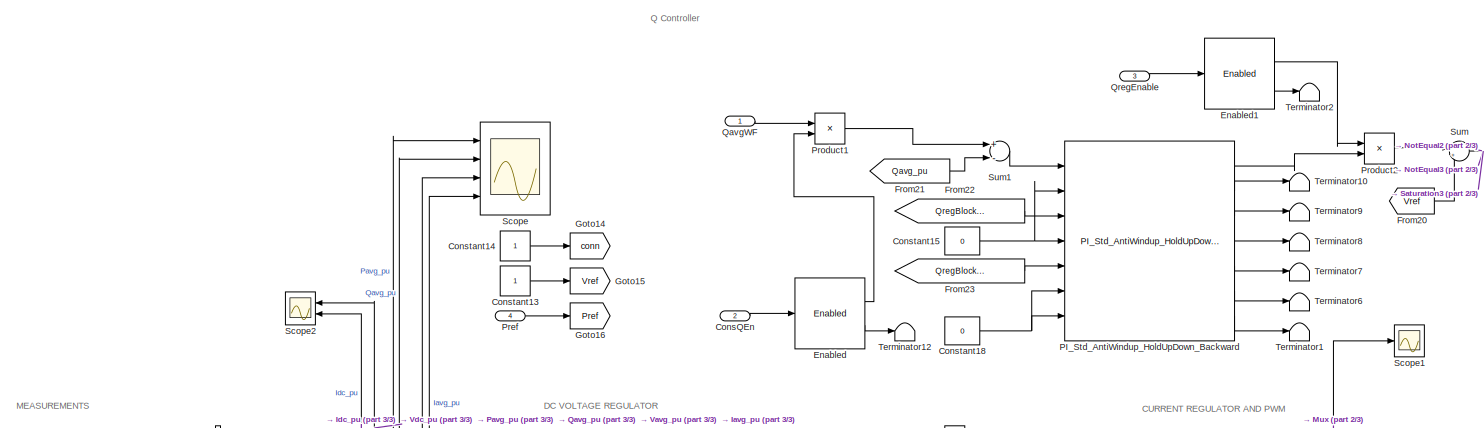
[diagram: WT3 - part 1/3, top center region]
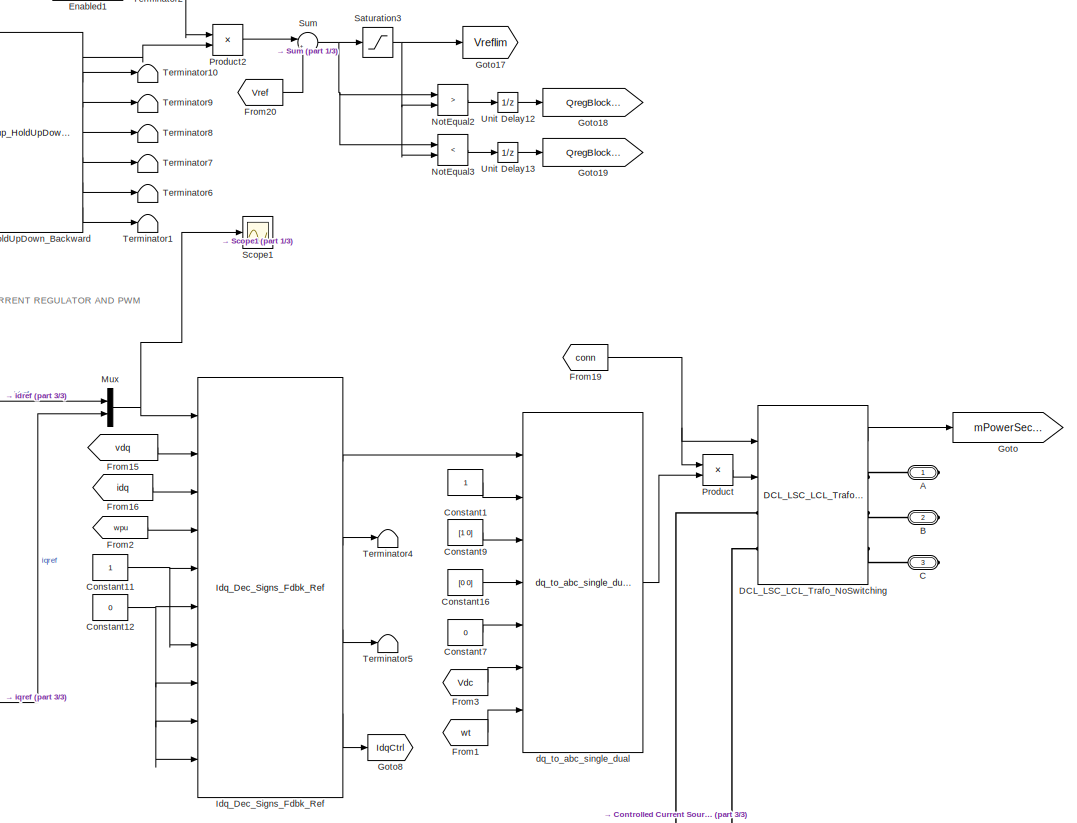
[diagram: WT3 - part 2/3, middle right region]
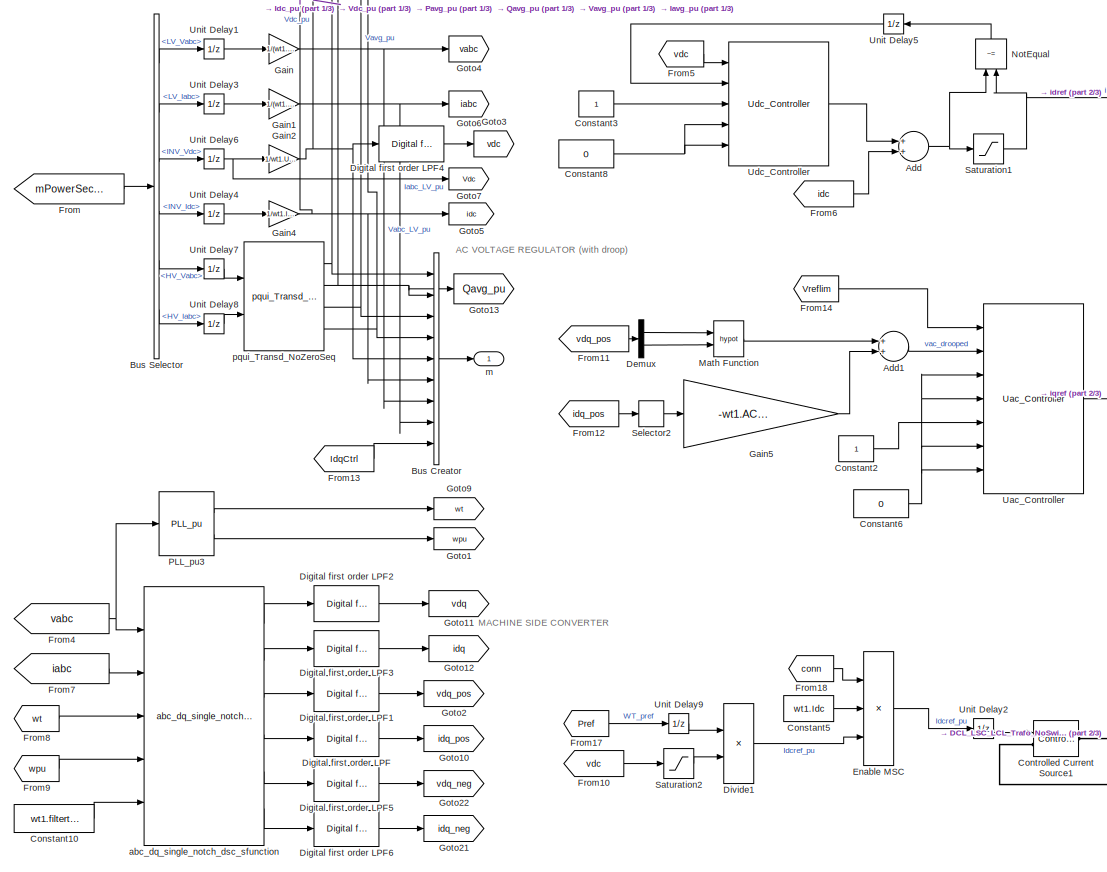
[diagram: WT3 - part 3/3, middle left region]
BLOCK [SubSystem] WT3
  Ports = [4, 1, 0, 0, 0, 0, 3]
  RequestExecContextInheritance = off
BLOCK [PMIOPort] WT3/A
  Side = Right
BLOCK [Sum] WT3/Add
  InputSameDT = off
  OutDataTypeStr = Inherit: Inherit via internal rule
  Ports = [2, 1]
  SaturateOnIntegerOverflow = off
BLOCK [Sum] WT3/Add1
  InputSameDT = off
  OutDataTypeStr = Inherit: Inherit via internal rule
  Ports = [2, 1]
  SaturateOnIntegerOverflow = off
BLOCK [PMIOPort] WT3/B
  Port = 2
  Side = Right
BLOCK [BusCreator] WT3/Bus Creator
  DisplayOption = bar
  InheritFromInputs = on
  Inputs = 9
  Ports = [9, 1]
BLOCK [BusSelector] WT3/Bus Selector
  OutputAsBus = off
  OutputSignals = LV_Vabc,LV_Iabc,INV_Vdc,INV_Idc,HV_Vabc,HV_Iabc
  Ports = [1, 6]
BLOCK [PMIOPort] WT3/C
  Port = 3
  Side = Right
BLOCK [Inport] WT3/ConsQEn
  IconDisplay = Port number
  Port = 2
BLOCK [Constant] WT3/Constant1
  SampleTime = wt1.Ts_control
BLOCK [Constant] WT3/Constant10
  SampleTime = wt1.Ts_control
  Value = wt1.filtertype
BLOCK [Constant] WT3/Constant11
  SampleTime = wt1.Ts_control
BLOCK [Constant] WT3/Constant12
  SampleTime = wt1.Ts_control
  Value = 0
BLOCK [Constant] WT3/Constant13
BLOCK [Constant] WT3/Constant14
BLOCK [Constant] WT3/Constant15
  Value = 0
BLOCK [Constant] WT3/Constant16
  SampleTime = wt1.Ts_control
  Value = [0 0]
BLOCK [Constant] WT3/Constant18
  Value = 0
BLOCK [Constant] WT3/Constant2
  SampleTime = wt1.Ts_control
BLOCK [Constant] WT3/Constant3
  SampleTime = wt1.Ts_control
BLOCK [Constant] WT3/Constant5
  SampleTime = wt1.Ts_control
  Value = wt1.Idc
BLOCK [Constant] WT3/Constant6
  SampleTime = wt1.Ts_control
  Value = 0
BLOCK [Constant] WT3/Constant7
  SampleTime = wt1.Ts_control
  Value = 0
BLOCK [Constant] WT3/Constant8
  SampleTime = wt1.Ts_control
  Value = 0
BLOCK [Constant] WT3/Constant9
  SampleTime = wt1.Ts_control
  Value = [1 0]
BLOCK [Reference] WT3/Controlled Current Source1  REF=powerlib/Electrical
Sources/Controlled Current Source
  Ports = [1, 0, 0, 0, 0, 1, 1]
  SourceBlock = powerlib/Electrical\nSources/Controlled Current Source
  SourceProductBaseCode = PS
  SourceProductName = Simscape Power Systems
  SourceType = Controlled Current Source
BLOCK [Reference] WT3/DCL_LSC_LCL_Trafo_NoSwitching  REF=pwrsysVSrc/DCL_LSC_LCL_Trafo_NoSwitching
  Ports = [2, 1, 0, 0, 0, 2, 3]
  SourceBlock = pwrsysVSrc/DCL_LSC_LCL_Trafo_NoSwitching
  SourceProductName = NTNU Power Systems
  SourceType = DCL + LSC + LCL + Trafo
BLOCK [Demux] WT3/Demux
  DisplayOption = bar
  Outputs = 2
  Ports = [1, 2]
BLOCK [Reference] WT3/Digital first order LPF  REF=pwrsysBasic/Digital first order LPF
  Ports = [1, 1]
  SourceBlock = pwrsysBasic/Digital first order LPF
  SourceProductName = NTNU Power Systems
  SourceType = Digital first-order low-pass filter
BLOCK [Reference] WT3/Digital first order LPF1  REF=pwrsysBasic/Digital first order LPF
  Ports = [1, 1]
  SourceBlock = pwrsysBasic/Digital first order LPF
  SourceProductName = NTNU Power Systems
  SourceType = Digital first-order low-pass filter
BLOCK [Reference] WT3/Digital first order LPF2  REF=pwrsysBasic/Digital first order LPF
  Ports = [1, 1]
  SourceBlock = pwrsysBasic/Digital first order LPF
  SourceProductName = NTNU Power Systems
  SourceType = Digital first-order low-pass filter
BLOCK [Reference] WT3/Digital first order LPF3  REF=pwrsysBasic/Digital first order LPF
  Ports = [1, 1]
  SourceBlock = pwrsysBasic/Digital first order LPF
  SourceProductName = NTNU Power Systems
  SourceType = Digital first-order low-pass filter
BLOCK [Reference] WT3/Digital first order LPF4  REF=pwrsysBasic/Digital first order LPF
  Ports = [1, 1]
  SourceBlock = pwrsysBasic/Digital first order LPF
  SourceProductName = NTNU Power Systems
  SourceType = Digital first-order low-pass filter
BLOCK [Reference] WT3/Digital first order LPF5  REF=pwrsysBasic/Digital first order LPF
  Commented = on
  Ports = [1, 1]
  SourceBlock = pwrsysBasic/Digital first order LPF
  SourceProductName = NTNU Power Systems
  SourceType = Digital first-order low-pass filter
BLOCK [Reference] WT3/Digital first order LPF6  REF=pwrsysBasic/Digital first order LPF
  Commented = on
  Ports = [1, 1]
  SourceBlock = pwrsysBasic/Digital first order LPF
  SourceProductName = NTNU Power Systems
  SourceType = Digital first-order low-pass filter
BLOCK [Product] WT3/Divide1
  InputSameDT = off
  Inputs = */
  OutDataTypeStr = Inherit: Inherit via internal rule
  Ports = [2, 1]
  RndMeth = Floor
  SaturateOnIntegerOverflow = off
BLOCK [Product] WT3/Enable MSC
  InputSameDT = off
  Inputs = 3
  OutDataTypeStr = Inherit: Inherit via internal rule
  Ports = [3, 1]
  RndMeth = Floor
  SaturateOnIntegerOverflow = off
BLOCK [Reference] WT3/Enabled  REF=pwrsysBasic/Enabled
  Ports = [1, 2]
  SourceBlock = pwrsysBasic/Enabled
  SourceProductName = NTNU Power Systems
  SourceType = Enabled block
BLOCK [Reference] WT3/Enabled1  REF=pwrsysBasic/Enabled
  Ports = [1, 2]
  SourceBlock = pwrsysBasic/Enabled
  SourceProductName = NTNU Power Systems
  SourceType = Enabled block
BLOCK [From] WT3/From
  GotoTag = mPowerSection
BLOCK [From] WT3/From1
  GotoTag = wt
BLOCK [From] WT3/From10
  GotoTag = vdc
BLOCK [From] WT3/From11
  GotoTag = vdq_pos
BLOCK [From] WT3/From12
  GotoTag = idq_pos
BLOCK [From] WT3/From13
  GotoTag = IdqCtrl
BLOCK [From] WT3/From14
  GotoTag = Vreflim
BLOCK [From] WT3/From15
  GotoTag = vdq
BLOCK [From] WT3/From16
  GotoTag = idq
BLOCK [From] WT3/From17
  GotoTag = Pref
BLOCK [From] WT3/From18
  GotoTag = conn
BLOCK [From] WT3/From19
  GotoTag = conn
BLOCK [From] WT3/From2
  GotoTag = wpu
BLOCK [From] WT3/From20
  GotoTag = Vref
BLOCK [From] WT3/From21
  GotoTag = Qavg_pu
BLOCK [From] WT3/From22
  GotoTag = QregBlockUp
BLOCK [From] WT3/From23
  GotoTag = QregBlockDown
BLOCK [From] WT3/From3
  GotoTag = Vdc
BLOCK [From] WT3/From4
  GotoTag = vabc
BLOCK [From] WT3/From5
  GotoTag = vdc
BLOCK [From] WT3/From6
  GotoTag = idc
BLOCK [From] WT3/From7
  GotoTag = iabc
BLOCK [From] WT3/From8
  GotoTag = wt
BLOCK [From] WT3/From9
  GotoTag = wpu
BLOCK [Gain] WT3/Gain
  Gain = 1/(wt1.Uanp)
  OutDataTypeStr = Inherit: Inherit via internal rule
  ParamDataTypeStr = Inherit: Inherit via internal rule
  SaturateOnIntegerOverflow = off
BLOCK [Gain] WT3/Gain1
  Gain = 1/(wt1.Iap)
  OutDataTypeStr = Inherit: Inherit via internal rule
  ParamDataTypeStr = Inherit: Inherit via internal rule
  SaturateOnIntegerOverflow = off
BLOCK [Gain] WT3/Gain2
  Gain = 1/wt1.Udc
  OutDataTypeStr = Inherit: Inherit via internal rule
  ParamDataTypeStr = Inherit: Inherit via internal rule
  SaturateOnIntegerOverflow = off
BLOCK [Gain] WT3/Gain4
  Gain = 1/wt1.Idc
  OutDataTypeStr = Inherit: Inherit via internal rule
  ParamDataTypeStr = Inherit: Inherit via internal rule
  SaturateOnIntegerOverflow = off
BLOCK [Gain] WT3/Gain5
  Gain = -wt1.ACVCont.kiq_droop
  OutDataTypeStr = Inherit: Inherit via internal rule
  ParamDataTypeStr = Inherit: Inherit via internal rule
  SaturateOnIntegerOverflow = off
BLOCK [Goto] WT3/Goto
  GotoTag = mPowerSection
BLOCK [Goto] WT3/Goto1
  GotoTag = wpu
BLOCK [Goto] WT3/Goto10
  GotoTag = idq_pos
BLOCK [Goto] WT3/Goto11
  GotoTag = vdq
BLOCK [Goto] WT3/Goto12
  GotoTag = idq
BLOCK [Goto] WT3/Goto13
  GotoTag = Qavg_pu
BLOCK [Goto] WT3/Goto14
  GotoTag = conn
BLOCK [Goto] WT3/Goto15
  GotoTag = Vref
BLOCK [Goto] WT3/Goto16
  GotoTag = Pref
BLOCK [Goto] WT3/Goto17
  GotoTag = Vreflim
BLOCK [Goto] WT3/Goto18
  GotoTag = QregBlockUp
BLOCK [Goto] WT3/Goto19
  GotoTag = QregBlockDown
BLOCK [Goto] WT3/Goto2
  GotoTag = vdq_pos
BLOCK [Goto] WT3/Goto21
  Commented = on
  GotoTag = idq_neg
BLOCK [Goto] WT3/Goto22
  Commented = on
  GotoTag = vdq_neg
BLOCK [Goto] WT3/Goto3
  GotoTag = vdc
BLOCK [Goto] WT3/Goto4
  GotoTag = vabc
BLOCK [Goto] WT3/Goto5
  GotoTag = idc
BLOCK [Goto] WT3/Goto6
  GotoTag = iabc
BLOCK [Goto] WT3/Goto7
  GotoTag = Vdc
BLOCK [Goto] WT3/Goto8
  GotoTag = IdqCtrl
BLOCK [Goto] WT3/Goto9
  GotoTag = wt
BLOCK [Reference] WT3/Idq_Dec_Signs_Fdbk_Ref  REF=pwrsysVICtrl/Idq_Dec_Signs_Fdbk_Ref
  Ports = [10, 4]
  SourceBlock = pwrsysVICtrl/Idq_Dec_Signs_Fdbk_Ref
  SourceProductName = NTNU Power Systems
  SourceType = Idq Controller - PI regulator with anti-windup
BLOCK [Math] WT3/Math Function
  Operator = hypot
  Ports = [2, 1]
BLOCK [Mux] WT3/Mux
  DisplayOption = bar
  Inputs = 2
  Ports = [2, 1]
BLOCK [RelationalOperator] WT3/NotEqual
  InputSameDT = off
  Operator = ~=
  OutDataTypeStr = boolean
  Ports = [2, 1]
BLOCK [RelationalOperator] WT3/NotEqual2
  InputSameDT = off
  Operator = >
  OutDataTypeStr = boolean
  Ports = [2, 1]
BLOCK [RelationalOperator] WT3/NotEqual3
  InputSameDT = off
  Operator = <
  OutDataTypeStr = boolean
  Ports = [2, 1]
BLOCK [Reference] WT3/PI_Std_AntiWindup_HoldUpDown_Backward  REF=pwrsysBasic/PI_Std_AntiWindup_HoldUpDown_Backward
  Ports = [7, 7]
  SourceBlock = pwrsysBasic/PI_Std_AntiWindup_HoldUpDown_Backward
  SourceProductName = NTNU Power Systems
  SourceType = PI regulator with anti-windup
BLOCK [Reference] WT3/PLL_pu3  REF=pwrsysBasic/PLL_pu
  Ports = [1, 2]
  SourceBlock = pwrsysBasic/PLL_pu
  SourceProductName = NTNU Power Systems
  SourceType = Matlabs PLL with POS and NEG omega t output
BLOCK [Inport] WT3/Pref
  IconDisplay = Port number
  Port = 4
BLOCK [Product] WT3/Product
  InputSameDT = off
  OutDataTypeStr = Inherit: Inherit via internal rule
  Ports = [2, 1]
  RndMeth = Floor
  SaturateOnIntegerOverflow = off
BLOCK [Product] WT3/Product1
  InputSameDT = off
  OutDataTypeStr = Inherit: Inherit via internal rule
  Ports = [2, 1]
  RndMeth = Floor
  SaturateOnIntegerOverflow = off
BLOCK [Product] WT3/Product2
  InputSameDT = off
  OutDataTypeStr = Inherit: Inherit via internal rule
  Ports = [2, 1]
  RndMeth = Floor
  SaturateOnIntegerOverflow = off
BLOCK [Inport] WT3/QavgWF
  IconDisplay = Port number
BLOCK [Inport] WT3/QregEnable
  IconDisplay = Port number
  Port = 3
BLOCK [Saturate] WT3/Saturation1
  InputPortMap = u0
  LowerLimit = wt1.DCVCont.PImin
  Ports = [1, 1]
  UpperLimit = wt1.DCVCont.PImax
BLOCK [Saturate] WT3/Saturation2
  InputPortMap = u0
  LowerLimit = 0.8
  Ports = [1, 1]
  UpperLimit = 1.2
BLOCK [Saturate] WT3/Saturation3
  InputPortMap = u0
  LowerLimit = wt1.Qctrl.Umin
  Ports = [1, 1]
  UpperLimit = wt1.Qctrl.Umax
BLOCK [Scope] WT3/Scope
  Floating = off
  NumInputPorts = 4
  Ports = [4]
BLOCK [Scope] WT3/Scope1
  Floating = off
  NumInputPorts = 1
  Ports = [1]
  ScopeSpecificationString = Simulink.scopes.TimeScopeBlockCfg('CurrentConfiguration', extmgr.ConfigurationSet(extmgr.Configuration('Core','General UI',true),extmgr.Configuration('Core','Source UI',true),extmgr.Configuration('Sources','WiredSimulink',true,'DataLoggingVariableName','ScopeData2'),extmgr.Configuration('Visuals','Time Domain',true,'SerializedDisplays',{struct('MinYLimReal','-1.81964','MaxYLimReal','1.37675','YLab...<+1425ch>
BLOCK [Scope] WT3/Scope2
  Floating = off
  NumInputPorts = 2
  Ports = [2]
  ScopeSpecificationString = Simulink.scopes.TimeScopeBlockCfg('CurrentConfiguration', extmgr.ConfigurationSet(extmgr.Configuration('Core','General UI',true),extmgr.Configuration('Core','Source UI',true),extmgr.Configuration('Sources','WiredSimulink',true,'DataLoggingVariableName','ScopeData4'),extmgr.Configuration('Visuals','Time Domain',true,'SerializedDisplays',{struct('MinYLimReal','-0.13194','MaxYLimReal','1.18745','YLab...<+1401ch>
BLOCK [Selector] WT3/Selector2
  IndexMode = Zero-based
  IndexOptions = Index vector (dialog)
  Indices = 1
  InputPortWidth = 2
  OutputSizes = 1
  Ports = [1, 1]
BLOCK [Sum] WT3/Sum
  IconShape = round
  InputSameDT = off
  Inputs = |++
  OutDataTypeStr = Inherit: Inherit via internal rule
  Ports = [2, 1]
  SaturateOnIntegerOverflow = off
BLOCK [Sum] WT3/Sum1
  InputSameDT = off
  Inputs = +-
  OutDataTypeStr = Inherit: Inherit via internal rule
  Ports = [2, 1]
  SaturateOnIntegerOverflow = off
BLOCK [Terminator] WT3/Terminator1
BLOCK [Terminator] WT3/Terminator10
BLOCK [Terminator] WT3/Terminator12
BLOCK [Terminator] WT3/Terminator2
BLOCK [Terminator] WT3/Terminator4
BLOCK [Terminator] WT3/Terminator5
BLOCK [Terminator] WT3/Terminator6
BLOCK [Terminator] WT3/Terminator7
BLOCK [Terminator] WT3/Terminator8
BLOCK [Terminator] WT3/Terminator9
BLOCK [Reference] WT3/Uac_Controller  REF=pwrsysVICtrl/Uac_Controller
  Ports = [7, 1]
  SourceBlock = pwrsysVICtrl/Uac_Controller
  SourceProductName = NTNU Power Systems
  SourceType = Udc Controller - PI regulator with anti-windup
BLOCK [Reference] WT3/Udc_Controller  REF=pwrsysVICtrl/Udc_Controller
  Ports = [5, 1]
  SourceBlock = pwrsysVICtrl/Udc_Controller
  SourceProductName = NTNU Power Systems
  SourceType = Udc Controller - PI regulator with anti-windup
BLOCK [UnitDelay] WT3/Unit Delay1
  InitialCondition = [0 0 0]
  InputProcessing = Elements as channels (sample based)
  SampleTime = wt1.Ts_control
BLOCK [UnitDelay] WT3/Unit Delay12
  InputProcessing = Elements as channels (sample based)
  SampleTime = wt1.Ts_control
BLOCK [UnitDelay] WT3/Unit Delay13
  InputProcessing = Elements as channels (sample based)
  SampleTime = wt1.Ts_control
BLOCK [UnitDelay] WT3/Unit Delay2
  InputProcessing = Elements as channels (sample based)
  SampleTime = wt1.Ts_control
BLOCK [UnitDelay] WT3/Unit Delay3
  InitialCondition = [0 0 0]
  InputProcessing = Elements as channels (sample based)
  SampleTime = wt1.Ts_control
BLOCK [UnitDelay] WT3/Unit Delay4
  InputProcessing = Elements as channels (sample based)
  SampleTime = wt1.Ts_control
BLOCK [UnitDelay] WT3/Unit Delay5
  InputProcessing = Elements as channels (sample based)
  SampleTime = wt1.Ts_control
BLOCK [UnitDelay] WT3/Unit Delay6
  InitialCondition = 1
  InputProcessing = Elements as channels (sample based)
  SampleTime = wt1.Ts_control
BLOCK [UnitDelay] WT3/Unit Delay7
  InitialCondition = [0 0 0]
  InputProcessing = Elements as channels (sample based)
  SampleTime = wt1.Ts_control
BLOCK [UnitDelay] WT3/Unit Delay8
  InitialCondition = [0 0 0]
  InputProcessing = Elements as channels (sample based)
  SampleTime = wt1.Ts_control
BLOCK [UnitDelay] WT3/Unit Delay9
  InputProcessing = Elements as channels (sample based)
  SampleTime = wt1.Ts_control
BLOCK [Reference] WT3/abc_dq_single_notch_dsc_sfunction  REF=pwrsysTransf/abc_dq_single_notch_dsc_sfunction
  Ports = [5, 6]
  SourceBlock = pwrsysTransf/abc_dq_single_notch_dsc_sfunction
  SourceProductName = NTNU Power Systems
  SourceType = abc->dq with Matlab
BLOCK [Reference] WT3/dq_to_abc_single_dual  REF=pwrsysVICtrl/dq_to_abc_single_dual
  Ports = [7, 1]
  SourceBlock = pwrsysVICtrl/dq_to_abc_single_dual
  SourceProductName = NTNU Power Systems
  SourceType = Scaling of vdq ref and PWM gate generation
BLOCK [Outport] WT3/m
  IconDisplay = Port number
BLOCK [Reference] WT3/pqui_Transd_NoZeroSeq  REF=pwrsysBasic/pqui_Transd_NoZeroSeq
  Ports = [2, 4]
  SourceBlock = pwrsysBasic/pqui_Transd_NoZeroSeq
  SourceProductName = NTNU Power Systems
  SourceType = u i p q transducer - No zero sequence
BLOCK [Reference] powergui  REF=powerlib/powergui
  Ports = []
  Priority = 1
  SourceBlock = powerlib/powergui
  SourceProductBaseCode = PS
  SourceProductName = Simscape Power Systems
  SourceType = PSB option menu block
BLOCK [Reference] pqui_COL  REF=pwrsysBasic/pqui_Transd_NoZeroSeq
  Ports = [2, 4]
  SourceBlock = pwrsysBasic/pqui_Transd_NoZeroSeq
  SourceProductName = NTNU Power Systems
  SourceType = u i p q transducer - No zero sequence
BLOCK [Reference] pqui_HVWT1  REF=pwrsysBasic/pqui_Transd_NoZeroSeq
  Ports = [2, 4]
  SourceBlock = pwrsysBasic/pqui_Transd_NoZeroSeq
  SourceProductName = NTNU Power Systems
  SourceType = u i p q transducer - No zero sequence
BLOCK [Reference] pqui_HVWT2  REF=pwrsysBasic/pqui_Transd_NoZeroSeq
  Ports = [2, 4]
  SourceBlock = pwrsysBasic/pqui_Transd_NoZeroSeq
  SourceProductName = NTNU Power Systems
  SourceType = u i p q transducer - No zero sequence
BLOCK [Reference] pqui_HVWT3  REF=pwrsysBasic/pqui_Transd_NoZeroSeq
  Ports = [2, 4]
  SourceBlock = pwrsysBasic/pqui_Transd_NoZeroSeq
  SourceProductName = NTNU Power Systems
  SourceType = u i p q transducer - No zero sequence
BLOCK [Reference] pqui_Transd_NoZeroSeq1  REF=pwrsysBasic/pqui_Transd_NoZeroSeq
  Ports = [2, 4]
  SourceBlock = pwrsysBasic/pqui_Transd_NoZeroSeq
  SourceProductName = NTNU Power Systems
  SourceType = u i p q transducer - No zero sequence
ANNOTATION (root): Import cable
ANNOTATION WT1: AC VOLTAGE REGULATOR (with droop)
ANNOTATION WT1: CURRENT REGULATOR AND PWM
ANNOTATION WT1: DC VOLTAGE REGULATOR
ANNOTATION WT1: MACHINE SIDE CONVERTER
ANNOTATION WT1: MEASUREMENTS
ANNOTATION WT1: Q Controller
ANNOTATION WT2: AC VOLTAGE REGULATOR (with droop)
ANNOTATION WT2: CURRENT REGULATOR AND PWM
ANNOTATION WT2: DC VOLTAGE REGULATOR
ANNOTATION WT2: MACHINE SIDE CONVERTER
ANNOTATION WT2: MEASUREMENTS
ANNOTATION WT2: Q Controller
ANNOTATION WT3: AC VOLTAGE REGULATOR (with droop)
ANNOTATION WT3: CURRENT REGULATOR AND PWM
ANNOTATION WT3: DC VOLTAGE REGULATOR
ANNOTATION WT3: MACHINE SIDE CONVERTER
ANNOTATION WT3: MEASUREMENTS
ANNOTATION WT3: Q Controller
LINE Balanced_3ph_Vsource1:1 -> Terminator:1
LINE Balanced_3ph_Vsource1:2 -> Terminator1:1
LINE Balanced_3ph_Vsource1:3 -> Terminator2:1
LINE Balanced_3ph_Vsource1:4 -> Terminator5:1
LINE Balanced_3ph_Vsource3:1 -> Terminator6:1
LINE Balanced_3ph_Vsource3:2 -> Terminator7:1
LINE Balanced_3ph_Vsource3:3 -> Terminator8:1
LINE Balanced_3ph_Vsource3:4 -> Terminator9:1
LINE Bus Selector1:1 -> Scope_LV_Q:2
LINE Bus Selector1:2 -> Scope_LV_V:2
LINE Bus Selector2:1 -> Scope_LV_Q:3
LINE Bus Selector2:2 -> Scope_LV_V:3
LINE Bus Selector3:1 -> Sum:1
LINE Bus Selector4:1 -> Sum:2
LINE Bus Selector5:1 -> Sum:3
LINE Bus Selector:1 -> Scope_LV_Q:1
LINE Bus Selector:2 -> Scope_LV_V:1
LINE Constant10:1 -> Three-Phase Breaker:1
LINE Constant14:1 -> Divide:2
LINE Constant1:1 -> Balanced_3ph_Vsource3:2
LINE Constant2:1 -> Balanced_3ph_Vsource3:3
LINE Constant3:1 -> Balanced_3ph_Vsource3:4
LINE Constant4:1 -> Balanced_3ph_Vsource3:5
LINE Constant5:1 -> Multiply:2
LINE Constant6:1 -> Balanced_3ph_Vsource1:2
LINE Constant7:1 -> Balanced_3ph_Vsource1:3
LINE Constant8:1 -> Balanced_3ph_Vsource1:4
LINE Constant9:1 -> Balanced_3ph_Vsource1:5
LINE Constant:1 -> Balanced_3ph_Vsource3:1
LINE Digital first order LPF6:1 -> Goto4:1
LINE Divide:1 -> Digital first order LPF6:1
LINE From1:1 -> Bus Selector4:1
LINE From2:1 -> Bus Selector5:1
LINE From3:1 -> WT3:1
LINE From4:1 -> WT2:1
LINE From5:1 -> WT1:1
LINE From:1 -> Bus Selector3:1
NET HV:1 -> Scope3:1, pqui_COL:1
NET HV:2 -> Scope3:2, pqui_COL:2
LINE HVWT1:1 -> pqui_HVWT1:1
LINE HVWT1:2 -> pqui_HVWT1:2
LINE HVWT2:1 -> pqui_HVWT2:1
LINE HVWT2:2 -> pqui_HVWT2:2
LINE HVWT3:1 -> pqui_HVWT3:1
LINE HVWT3:2 -> pqui_HVWT3:2
NET MV:1 -> Scope:1, pqui_Transd_NoZeroSeq1:1
NET MV:2 -> Scope:2, pqui_Transd_NoZeroSeq1:2
LINE Multiply:1 -> Balanced_3ph_Vsource1:1
LINE Step1:1 -> WT1:4
LINE Step2:1 -> WT2:4
LINE Step3:1 -> WT3:4
NET Step4:1 -> WT1:2, WT1:3, WT2:2, WT2:3, WT3:2, WT3:3
LINE Step:1 -> Multiply:1
LINE Sum:1 -> Divide:1
LINE WT1/Add1:1 -> WT1/Uac_Controller:2
NET WT1/Add:1 -> WT1/NotEqual:1, WT1/Saturation1:1
LINE WT1/Bus Creator:1 -> WT1/m:1
LINE WT1/Bus Selector:1 -> WT1/Unit Delay1:1
LINE WT1/Bus Selector:2 -> WT1/Unit Delay3:1
LINE WT1/Bus Selector:3 -> WT1/Unit Delay6:1
LINE WT1/Bus Selector:4 -> WT1/Unit Delay4:1
LINE WT1/Bus Selector:5 -> WT1/Unit Delay7:1
LINE WT1/Bus Selector:6 -> WT1/Unit Delay8:1
LINE WT1/ConsQEn:1 -> WT1/Enabled:1
LINE WT1/Constant10:1 -> WT1/abc_dq_single_notch_dsc_sfunction:5
NET WT1/Constant11:1 -> WT1/Idq_Dec_Signs_Fdbk_Ref:5, WT1/Idq_Dec_Signs_Fdbk_Ref:7
NET WT1/Constant12:1 -> WT1/Idq_Dec_Signs_Fdbk_Ref:10, WT1/Idq_Dec_Signs_Fdbk_Ref:6, WT1/Idq_Dec_Signs_Fdbk_Ref:8, WT1/Idq_Dec_Signs_Fdbk_Ref:9
LINE WT1/Constant13:1 -> WT1/Goto15:1
LINE WT1/Constant14:1 -> WT1/Goto14:1
NET WT1/Constant15:1 -> WT1/PI_Std_AntiWindup_HoldUpDown_Backward:2, WT1/PI_Std_AntiWindup_HoldUpDown_Backward:4
LINE WT1/Constant16:1 -> WT1/dq_to_abc_single_dual:4
NET WT1/Constant18:1 -> WT1/PI_Std_AntiWindup_HoldUpDown_Backward:6, WT1/PI_Std_AntiWindup_HoldUpDown_Backward:7
LINE WT1/Constant1:1 -> WT1/dq_to_abc_single_dual:2
LINE WT1/Constant2:1 -> WT1/Uac_Controller:5
LINE WT1/Constant3:1 -> WT1/Udc_Controller:3
LINE WT1/Constant5:1 -> WT1/Enable MSC:2
NET WT1/Constant6:1 -> WT1/Uac_Controller:3, WT1/Uac_Controller:4, WT1/Uac_Controller:6, WT1/Uac_Controller:7
LINE WT1/Constant7:1 -> WT1/dq_to_abc_single_dual:5
NET WT1/Constant8:1 -> WT1/Udc_Controller:4, WT1/Udc_Controller:5
LINE WT1/Constant9:1 -> WT1/dq_to_abc_single_dual:3
LINE WT1/DCL_LSC_LCL_Trafo_NoSwitching:1 -> WT1/Goto:1
LINE WT1/Demux:1 -> WT1/Math Function:1
LINE WT1/Demux:2 -> WT1/Math Function:2
LINE WT1/Digital first order LPF1:1 -> WT1/Goto2:1
LINE WT1/Digital first order LPF2:1 -> WT1/Goto11:1
LINE WT1/Digital first order LPF3:1 -> WT1/Goto12:1
LINE WT1/Digital first order LPF4:1 -> WT1/Goto3:1
LINE WT1/Digital first order LPF5:1 -> WT1/Goto22:1
LINE WT1/Digital first order LPF6:1 -> WT1/Goto21:1
LINE WT1/Digital first order LPF:1 -> WT1/Goto10:1
LINE WT1/Divide1:1 -> WT1/Enable MSC:3
LINE WT1/Enable MSC:1 -> WT1/Unit Delay2:1
LINE WT1/Enabled1:1 -> WT1/Product2:1
LINE WT1/Enabled1:2 -> WT1/Terminator2:1
LINE WT1/Enabled:1 -> WT1/Product1:2
LINE WT1/Enabled:2 -> WT1/Terminator12:1
LINE WT1/From10:1 -> WT1/Saturation2:1
LINE WT1/From11:1 -> WT1/Demux:1
LINE WT1/From12:1 -> WT1/Selector2:1
LINE WT1/From13:1 -> WT1/Bus Creator:9
LINE WT1/From14:1 -> WT1/Uac_Controller:1
LINE WT1/From15:1 -> WT1/Idq_Dec_Signs_Fdbk_Ref:2
LINE WT1/From16:1 -> WT1/Idq_Dec_Signs_Fdbk_Ref:3
LINE WT1/From17:1 -> WT1/Unit Delay9:1
LINE WT1/From18:1 -> WT1/Enable MSC:1
NET WT1/From19:1 -> WT1/DCL_LSC_LCL_Trafo_NoSwitching:1, WT1/Product:1
LINE WT1/From1:1 -> WT1/dq_to_abc_single_dual:7
LINE WT1/From20:1 -> WT1/Sum:2
LINE WT1/From21:1 -> WT1/Sum1:2
LINE WT1/From22:1 -> WT1/PI_Std_AntiWindup_HoldUpDown_Backward:3
LINE WT1/From23:1 -> WT1/PI_Std_AntiWindup_HoldUpDown_Backward:5
LINE WT1/From2:1 -> WT1/Idq_Dec_Signs_Fdbk_Ref:4
LINE WT1/From3:1 -> WT1/dq_to_abc_single_dual:6
NET WT1/From4:1 -> WT1/PLL_pu3:1, WT1/abc_dq_single_notch_dsc_sfunction:1
LINE WT1/From5:1 -> WT1/Udc_Controller:1
LINE WT1/From6:1 -> WT1/Add:2
LINE WT1/From7:1 -> WT1/abc_dq_single_notch_dsc_sfunction:2
LINE WT1/From8:1 -> WT1/abc_dq_single_notch_dsc_sfunction:3
LINE WT1/From9:1 -> WT1/abc_dq_single_notch_dsc_sfunction:4
LINE WT1/From:1 -> WT1/Bus Selector:1
NET WT1/Gain1:1 -> WT1/Bus Creator:8, WT1/Goto6:1
NET WT1/Gain2:1 -> WT1/Bus Creator:5, WT1/Digital first order LPF4:1, WT1/Scope2:1
NET WT1/Gain4:1 -> WT1/Bus Creator:6, WT1/Goto5:1, WT1/Scope2:2
LINE WT1/Gain5:1 -> WT1/Add1:2
NET WT1/Gain:1 -> WT1/Bus Creator:7, WT1/Goto4:1
LINE WT1/Idq_Dec_Signs_Fdbk_Ref:1 -> WT1/dq_to_abc_single_dual:1
LINE WT1/Idq_Dec_Signs_Fdbk_Ref:2 -> WT1/Terminator4:1
LINE WT1/Idq_Dec_Signs_Fdbk_Ref:3 -> WT1/Terminator5:1
LINE WT1/Idq_Dec_Signs_Fdbk_Ref:4 -> WT1/Goto8:1
LINE WT1/Math Function:1 -> WT1/Add1:1
NET WT1/Mux:1 -> WT1/Idq_Dec_Signs_Fdbk_Ref:1, WT1/Scope1:1
LINE WT1/NotEqual2:1 -> WT1/Unit Delay12:1
LINE WT1/NotEqual3:1 -> WT1/Unit Delay13:1
LINE WT1/NotEqual:1 -> WT1/Unit Delay5:1
LINE WT1/PI_Std_AntiWindup_HoldUpDown_Backward:1 -> WT1/Product2:2
LINE WT1/PI_Std_AntiWindup_HoldUpDown_Backward:2 -> WT1/Terminator10:1
LINE WT1/PI_Std_AntiWindup_HoldUpDown_Backward:3 -> WT1/Terminator9:1
LINE WT1/PI_Std_AntiWindup_HoldUpDown_Backward:4 -> WT1/Terminator8:1
LINE WT1/PI_Std_AntiWindup_HoldUpDown_Backward:5 -> WT1/Terminator7:1
LINE WT1/PI_Std_AntiWindup_HoldUpDown_Backward:6 -> WT1/Terminator6:1
LINE WT1/PI_Std_AntiWindup_HoldUpDown_Backward:7 -> WT1/Terminator1:1
LINE WT1/PLL_pu3:1 -> WT1/Goto9:1
LINE WT1/PLL_pu3:2 -> WT1/Goto1:1
LINE WT1/Pref:1 -> WT1/Goto16:1
LINE WT1/Product1:1 -> WT1/Sum1:1
LINE WT1/Product2:1 -> WT1/Sum:1
LINE WT1/Product:1 -> WT1/DCL_LSC_LCL_Trafo_NoSwitching:2
LINE WT1/QavgWF:1 -> WT1/Product1:1
LINE WT1/QregEnable:1 -> WT1/Enabled1:1
NET WT1/Saturation1:1 -> WT1/Mux:1, WT1/NotEqual:2
LINE WT1/Saturation2:1 -> WT1/Divide1:2
NET WT1/Saturation3:1 -> WT1/Goto17:1, WT1/NotEqual2:2, WT1/NotEqual3:2
LINE WT1/Selector2:1 -> WT1/Gain5:1
LINE WT1/Sum1:1 -> WT1/PI_Std_AntiWindup_HoldUpDown_Backward:1
NET WT1/Sum:1 -> WT1/NotEqual2:1, WT1/NotEqual3:1, WT1/Saturation3:1
LINE WT1/Uac_Controller:1 -> WT1/Mux:2
LINE WT1/Udc_Controller:1 -> WT1/Add:1
LINE WT1/Unit Delay12:1 -> WT1/Goto18:1
LINE WT1/Unit Delay13:1 -> WT1/Goto19:1
LINE WT1/Unit Delay1:1 -> WT1/Gain:1
LINE WT1/Unit Delay2:1 -> WT1/Controlled Current Source1:1
LINE WT1/Unit Delay3:1 -> WT1/Gain1:1
LINE WT1/Unit Delay4:1 -> WT1/Gain4:1
LINE WT1/Unit Delay5:1 -> WT1/Udc_Controller:2
NET WT1/Unit Delay6:1 -> WT1/Gain2:1, WT1/Goto7:1
LINE WT1/Unit Delay7:1 -> WT1/pqui_Transd_NoZeroSeq:1
LINE WT1/Unit Delay8:1 -> WT1/pqui_Transd_NoZeroSeq:2
LINE WT1/Unit Delay9:1 -> WT1/Divide1:1
LINE WT1/abc_dq_single_notch_dsc_sfunction:1 -> WT1/Digital first order LPF2:1
LINE WT1/abc_dq_single_notch_dsc_sfunction:2 -> WT1/Digital first order LPF3:1
LINE WT1/abc_dq_single_notch_dsc_sfunction:3 -> WT1/Digital first order LPF1:1
LINE WT1/abc_dq_single_notch_dsc_sfunction:4 -> WT1/Digital first order LPF:1
LINE WT1/abc_dq_single_notch_dsc_sfunction:5 -> WT1/Digital first order LPF5:1
LINE WT1/abc_dq_single_notch_dsc_sfunction:6 -> WT1/Digital first order LPF6:1
LINE WT1/dq_to_abc_single_dual:1 -> WT1/Product:2
NET WT1/pqui_Transd_NoZeroSeq:1 -> WT1/Bus Creator:1, WT1/Scope:1
NET WT1/pqui_Transd_NoZeroSeq:2 -> WT1/Bus Creator:2, WT1/Goto13:1, WT1/Scope:2
NET WT1/pqui_Transd_NoZeroSeq:3 -> WT1/Bus Creator:3, WT1/Scope:3
NET WT1/pqui_Transd_NoZeroSeq:4 -> WT1/Bus Creator:4, WT1/Scope:4
NET WT1:1 -> Bus Selector:1, Goto:1
LINE WT2/Add1:1 -> WT2/Uac_Controller:2
NET WT2/Add:1 -> WT2/NotEqual:1, WT2/Saturation1:1
LINE WT2/Bus Creator:1 -> WT2/m:1
LINE WT2/Bus Selector:1 -> WT2/Unit Delay1:1
LINE WT2/Bus Selector:2 -> WT2/Unit Delay3:1
LINE WT2/Bus Selector:3 -> WT2/Unit Delay6:1
LINE WT2/Bus Selector:4 -> WT2/Unit Delay4:1
LINE WT2/Bus Selector:5 -> WT2/Unit Delay7:1
LINE WT2/Bus Selector:6 -> WT2/Unit Delay8:1
LINE WT2/ConsQEn:1 -> WT2/Enabled:1
LINE WT2/Constant10:1 -> WT2/abc_dq_single_notch_dsc_sfunction:5
NET WT2/Constant11:1 -> WT2/Idq_Dec_Signs_Fdbk_Ref:5, WT2/Idq_Dec_Signs_Fdbk_Ref:7
NET WT2/Constant12:1 -> WT2/Idq_Dec_Signs_Fdbk_Ref:10, WT2/Idq_Dec_Signs_Fdbk_Ref:6, WT2/Idq_Dec_Signs_Fdbk_Ref:8, WT2/Idq_Dec_Signs_Fdbk_Ref:9
LINE WT2/Constant13:1 -> WT2/Goto15:1
LINE WT2/Constant14:1 -> WT2/Goto14:1
NET WT2/Constant15:1 -> WT2/PI_Std_AntiWindup_HoldUpDown_Backward:2, WT2/PI_Std_AntiWindup_HoldUpDown_Backward:4
LINE WT2/Constant16:1 -> WT2/dq_to_abc_single_dual:4
NET WT2/Constant18:1 -> WT2/PI_Std_AntiWindup_HoldUpDown_Backward:6, WT2/PI_Std_AntiWindup_HoldUpDown_Backward:7
LINE WT2/Constant1:1 -> WT2/dq_to_abc_single_dual:2
LINE WT2/Constant2:1 -> WT2/Uac_Controller:5
LINE WT2/Constant3:1 -> WT2/Udc_Controller:3
LINE WT2/Constant5:1 -> WT2/Enable MSC:2
NET WT2/Constant6:1 -> WT2/Uac_Controller:3, WT2/Uac_Controller:4, WT2/Uac_Controller:6, WT2/Uac_Controller:7
LINE WT2/Constant7:1 -> WT2/dq_to_abc_single_dual:5
NET WT2/Constant8:1 -> WT2/Udc_Controller:4, WT2/Udc_Controller:5
LINE WT2/Constant9:1 -> WT2/dq_to_abc_single_dual:3
LINE WT2/DCL_LSC_LCL_Trafo_NoSwitching:1 -> WT2/Goto:1
LINE WT2/Demux:1 -> WT2/Math Function:1
LINE WT2/Demux:2 -> WT2/Math Function:2
LINE WT2/Digital first order LPF1:1 -> WT2/Goto2:1
LINE WT2/Digital first order LPF2:1 -> WT2/Goto11:1
LINE WT2/Digital first order LPF3:1 -> WT2/Goto12:1
LINE WT2/Digital first order LPF4:1 -> WT2/Goto3:1
LINE WT2/Digital first order LPF5:1 -> WT2/Goto22:1
LINE WT2/Digital first order LPF6:1 -> WT2/Goto21:1
LINE WT2/Digital first order LPF:1 -> WT2/Goto10:1
LINE WT2/Divide1:1 -> WT2/Enable MSC:3
LINE WT2/Enable MSC:1 -> WT2/Unit Delay2:1
LINE WT2/Enabled1:1 -> WT2/Product2:1
LINE WT2/Enabled1:2 -> WT2/Terminator2:1
LINE WT2/Enabled:1 -> WT2/Product1:2
LINE WT2/Enabled:2 -> WT2/Terminator12:1
LINE WT2/From10:1 -> WT2/Saturation2:1
LINE WT2/From11:1 -> WT2/Demux:1
LINE WT2/From12:1 -> WT2/Selector2:1
LINE WT2/From13:1 -> WT2/Bus Creator:9
LINE WT2/From14:1 -> WT2/Uac_Controller:1
LINE WT2/From15:1 -> WT2/Idq_Dec_Signs_Fdbk_Ref:2
LINE WT2/From16:1 -> WT2/Idq_Dec_Signs_Fdbk_Ref:3
LINE WT2/From17:1 -> WT2/Unit Delay9:1
LINE WT2/From18:1 -> WT2/Enable MSC:1
NET WT2/From19:1 -> WT2/DCL_LSC_LCL_Trafo_NoSwitching:1, WT2/Product:1
LINE WT2/From1:1 -> WT2/dq_to_abc_single_dual:7
LINE WT2/From20:1 -> WT2/Sum:2
LINE WT2/From21:1 -> WT2/Sum1:2
LINE WT2/From22:1 -> WT2/PI_Std_AntiWindup_HoldUpDown_Backward:3
LINE WT2/From23:1 -> WT2/PI_Std_AntiWindup_HoldUpDown_Backward:5
LINE WT2/From2:1 -> WT2/Idq_Dec_Signs_Fdbk_Ref:4
LINE WT2/From3:1 -> WT2/dq_to_abc_single_dual:6
NET WT2/From4:1 -> WT2/PLL_pu3:1, WT2/abc_dq_single_notch_dsc_sfunction:1
LINE WT2/From5:1 -> WT2/Udc_Controller:1
LINE WT2/From6:1 -> WT2/Add:2
LINE WT2/From7:1 -> WT2/abc_dq_single_notch_dsc_sfunction:2
LINE WT2/From8:1 -> WT2/abc_dq_single_notch_dsc_sfunction:3
LINE WT2/From9:1 -> WT2/abc_dq_single_notch_dsc_sfunction:4
LINE WT2/From:1 -> WT2/Bus Selector:1
NET WT2/Gain1:1 -> WT2/Bus Creator:8, WT2/Goto6:1
NET WT2/Gain2:1 -> WT2/Bus Creator:5, WT2/Digital first order LPF4:1, WT2/Scope2:1
NET WT2/Gain4:1 -> WT2/Bus Creator:6, WT2/Goto5:1, WT2/Scope2:2
LINE WT2/Gain5:1 -> WT2/Add1:2
NET WT2/Gain:1 -> WT2/Bus Creator:7, WT2/Goto4:1
LINE WT2/Idq_Dec_Signs_Fdbk_Ref:1 -> WT2/dq_to_abc_single_dual:1
LINE WT2/Idq_Dec_Signs_Fdbk_Ref:2 -> WT2/Terminator4:1
LINE WT2/Idq_Dec_Signs_Fdbk_Ref:3 -> WT2/Terminator5:1
LINE WT2/Idq_Dec_Signs_Fdbk_Ref:4 -> WT2/Goto8:1
LINE WT2/Math Function:1 -> WT2/Add1:1
NET WT2/Mux:1 -> WT2/Idq_Dec_Signs_Fdbk_Ref:1, WT2/Scope1:1
LINE WT2/NotEqual2:1 -> WT2/Unit Delay12:1
LINE WT2/NotEqual3:1 -> WT2/Unit Delay13:1
LINE WT2/NotEqual:1 -> WT2/Unit Delay5:1
LINE WT2/PI_Std_AntiWindup_HoldUpDown_Backward:1 -> WT2/Product2:2
LINE WT2/PI_Std_AntiWindup_HoldUpDown_Backward:2 -> WT2/Terminator10:1
LINE WT2/PI_Std_AntiWindup_HoldUpDown_Backward:3 -> WT2/Terminator9:1
LINE WT2/PI_Std_AntiWindup_HoldUpDown_Backward:4 -> WT2/Terminator8:1
LINE WT2/PI_Std_AntiWindup_HoldUpDown_Backward:5 -> WT2/Terminator7:1
LINE WT2/PI_Std_AntiWindup_HoldUpDown_Backward:6 -> WT2/Terminator6:1
LINE WT2/PI_Std_AntiWindup_HoldUpDown_Backward:7 -> WT2/Terminator1:1
LINE WT2/PLL_pu3:1 -> WT2/Goto9:1
LINE WT2/PLL_pu3:2 -> WT2/Goto1:1
LINE WT2/Pref:1 -> WT2/Goto16:1
LINE WT2/Product1:1 -> WT2/Sum1:1
LINE WT2/Product2:1 -> WT2/Sum:1
LINE WT2/Product:1 -> WT2/DCL_LSC_LCL_Trafo_NoSwitching:2
LINE WT2/QavgWF:1 -> WT2/Product1:1
LINE WT2/QregEnable:1 -> WT2/Enabled1:1
NET WT2/Saturation1:1 -> WT2/Mux:1, WT2/NotEqual:2
LINE WT2/Saturation2:1 -> WT2/Divide1:2
NET WT2/Saturation3:1 -> WT2/Goto17:1, WT2/NotEqual2:2, WT2/NotEqual3:2
LINE WT2/Selector2:1 -> WT2/Gain5:1
LINE WT2/Sum1:1 -> WT2/PI_Std_AntiWindup_HoldUpDown_Backward:1
NET WT2/Sum:1 -> WT2/NotEqual2:1, WT2/NotEqual3:1, WT2/Saturation3:1
LINE WT2/Uac_Controller:1 -> WT2/Mux:2
LINE WT2/Udc_Controller:1 -> WT2/Add:1
LINE WT2/Unit Delay12:1 -> WT2/Goto18:1
LINE WT2/Unit Delay13:1 -> WT2/Goto19:1
LINE WT2/Unit Delay1:1 -> WT2/Gain:1
LINE WT2/Unit Delay2:1 -> WT2/Controlled Current Source1:1
LINE WT2/Unit Delay3:1 -> WT2/Gain1:1
LINE WT2/Unit Delay4:1 -> WT2/Gain4:1
LINE WT2/Unit Delay5:1 -> WT2/Udc_Controller:2
NET WT2/Unit Delay6:1 -> WT2/Gain2:1, WT2/Goto7:1
LINE WT2/Unit Delay7:1 -> WT2/pqui_Transd_NoZeroSeq:1
LINE WT2/Unit Delay8:1 -> WT2/pqui_Transd_NoZeroSeq:2
LINE WT2/Unit Delay9:1 -> WT2/Divide1:1
LINE WT2/abc_dq_single_notch_dsc_sfunction:1 -> WT2/Digital first order LPF2:1
LINE WT2/abc_dq_single_notch_dsc_sfunction:2 -> WT2/Digital first order LPF3:1
LINE WT2/abc_dq_single_notch_dsc_sfunction:3 -> WT2/Digital first order LPF1:1
LINE WT2/abc_dq_single_notch_dsc_sfunction:4 -> WT2/Digital first order LPF:1
LINE WT2/abc_dq_single_notch_dsc_sfunction:5 -> WT2/Digital first order LPF5:1
LINE WT2/abc_dq_single_notch_dsc_sfunction:6 -> WT2/Digital first order LPF6:1
LINE WT2/dq_to_abc_single_dual:1 -> WT2/Product:2
NET WT2/pqui_Transd_NoZeroSeq:1 -> WT2/Bus Creator:1, WT2/Scope:1
NET WT2/pqui_Transd_NoZeroSeq:2 -> WT2/Bus Creator:2, WT2/Goto13:1, WT2/Scope:2
NET WT2/pqui_Transd_NoZeroSeq:3 -> WT2/Bus Creator:3, WT2/Scope:3
NET WT2/pqui_Transd_NoZeroSeq:4 -> WT2/Bus Creator:4, WT2/Scope:4
NET WT2:1 -> Bus Selector1:1, Goto1:1
LINE WT3/Add1:1 -> WT3/Uac_Controller:2
NET WT3/Add:1 -> WT3/NotEqual:1, WT3/Saturation1:1
LINE WT3/Bus Creator:1 -> WT3/m:1
LINE WT3/Bus Selector:1 -> WT3/Unit Delay1:1
LINE WT3/Bus Selector:2 -> WT3/Unit Delay3:1
LINE WT3/Bus Selector:3 -> WT3/Unit Delay6:1
LINE WT3/Bus Selector:4 -> WT3/Unit Delay4:1
LINE WT3/Bus Selector:5 -> WT3/Unit Delay7:1
LINE WT3/Bus Selector:6 -> WT3/Unit Delay8:1
LINE WT3/ConsQEn:1 -> WT3/Enabled:1
LINE WT3/Constant10:1 -> WT3/abc_dq_single_notch_dsc_sfunction:5
NET WT3/Constant11:1 -> WT3/Idq_Dec_Signs_Fdbk_Ref:5, WT3/Idq_Dec_Signs_Fdbk_Ref:7
NET WT3/Constant12:1 -> WT3/Idq_Dec_Signs_Fdbk_Ref:10, WT3/Idq_Dec_Signs_Fdbk_Ref:6, WT3/Idq_Dec_Signs_Fdbk_Ref:8, WT3/Idq_Dec_Signs_Fdbk_Ref:9
LINE WT3/Constant13:1 -> WT3/Goto15:1
LINE WT3/Constant14:1 -> WT3/Goto14:1
NET WT3/Constant15:1 -> WT3/PI_Std_AntiWindup_HoldUpDown_Backward:2, WT3/PI_Std_AntiWindup_HoldUpDown_Backward:4
LINE WT3/Constant16:1 -> WT3/dq_to_abc_single_dual:4
NET WT3/Constant18:1 -> WT3/PI_Std_AntiWindup_HoldUpDown_Backward:6, WT3/PI_Std_AntiWindup_HoldUpDown_Backward:7
LINE WT3/Constant1:1 -> WT3/dq_to_abc_single_dual:2
LINE WT3/Constant2:1 -> WT3/Uac_Controller:5
LINE WT3/Constant3:1 -> WT3/Udc_Controller:3
LINE WT3/Constant5:1 -> WT3/Enable MSC:2
NET WT3/Constant6:1 -> WT3/Uac_Controller:3, WT3/Uac_Controller:4, WT3/Uac_Controller:6, WT3/Uac_Controller:7
LINE WT3/Constant7:1 -> WT3/dq_to_abc_single_dual:5
NET WT3/Constant8:1 -> WT3/Udc_Controller:4, WT3/Udc_Controller:5
LINE WT3/Constant9:1 -> WT3/dq_to_abc_single_dual:3
LINE WT3/DCL_LSC_LCL_Trafo_NoSwitching:1 -> WT3/Goto:1
LINE WT3/Demux:1 -> WT3/Math Function:1
LINE WT3/Demux:2 -> WT3/Math Function:2
LINE WT3/Digital first order LPF1:1 -> WT3/Goto2:1
LINE WT3/Digital first order LPF2:1 -> WT3/Goto11:1
LINE WT3/Digital first order LPF3:1 -> WT3/Goto12:1
LINE WT3/Digital first order LPF4:1 -> WT3/Goto3:1
LINE WT3/Digital first order LPF5:1 -> WT3/Goto22:1
LINE WT3/Digital first order LPF6:1 -> WT3/Goto21:1
LINE WT3/Digital first order LPF:1 -> WT3/Goto10:1
LINE WT3/Divide1:1 -> WT3/Enable MSC:3
LINE WT3/Enable MSC:1 -> WT3/Unit Delay2:1
LINE WT3/Enabled1:1 -> WT3/Product2:1
LINE WT3/Enabled1:2 -> WT3/Terminator2:1
LINE WT3/Enabled:1 -> WT3/Product1:2
LINE WT3/Enabled:2 -> WT3/Terminator12:1
LINE WT3/From10:1 -> WT3/Saturation2:1
LINE WT3/From11:1 -> WT3/Demux:1
LINE WT3/From12:1 -> WT3/Selector2:1
LINE WT3/From13:1 -> WT3/Bus Creator:9
LINE WT3/From14:1 -> WT3/Uac_Controller:1
LINE WT3/From15:1 -> WT3/Idq_Dec_Signs_Fdbk_Ref:2
LINE WT3/From16:1 -> WT3/Idq_Dec_Signs_Fdbk_Ref:3
LINE WT3/From17:1 -> WT3/Unit Delay9:1
LINE WT3/From18:1 -> WT3/Enable MSC:1
NET WT3/From19:1 -> WT3/DCL_LSC_LCL_Trafo_NoSwitching:1, WT3/Product:1
LINE WT3/From1:1 -> WT3/dq_to_abc_single_dual:7
LINE WT3/From20:1 -> WT3/Sum:2
LINE WT3/From21:1 -> WT3/Sum1:2
LINE WT3/From22:1 -> WT3/PI_Std_AntiWindup_HoldUpDown_Backward:3
LINE WT3/From23:1 -> WT3/PI_Std_AntiWindup_HoldUpDown_Backward:5
LINE WT3/From2:1 -> WT3/Idq_Dec_Signs_Fdbk_Ref:4
LINE WT3/From3:1 -> WT3/dq_to_abc_single_dual:6
NET WT3/From4:1 -> WT3/PLL_pu3:1, WT3/abc_dq_single_notch_dsc_sfunction:1
LINE WT3/From5:1 -> WT3/Udc_Controller:1
LINE WT3/From6:1 -> WT3/Add:2
LINE WT3/From7:1 -> WT3/abc_dq_single_notch_dsc_sfunction:2
LINE WT3/From8:1 -> WT3/abc_dq_single_notch_dsc_sfunction:3
LINE WT3/From9:1 -> WT3/abc_dq_single_notch_dsc_sfunction:4
LINE WT3/From:1 -> WT3/Bus Selector:1
NET WT3/Gain1:1 -> WT3/Bus Creator:8, WT3/Goto6:1
NET WT3/Gain2:1 -> WT3/Bus Creator:5, WT3/Digital first order LPF4:1, WT3/Scope2:1
NET WT3/Gain4:1 -> WT3/Bus Creator:6, WT3/Goto5:1, WT3/Scope2:2
LINE WT3/Gain5:1 -> WT3/Add1:2
NET WT3/Gain:1 -> WT3/Bus Creator:7, WT3/Goto4:1
LINE WT3/Idq_Dec_Signs_Fdbk_Ref:1 -> WT3/dq_to_abc_single_dual:1
LINE WT3/Idq_Dec_Signs_Fdbk_Ref:2 -> WT3/Terminator4:1
LINE WT3/Idq_Dec_Signs_Fdbk_Ref:3 -> WT3/Terminator5:1
LINE WT3/Idq_Dec_Signs_Fdbk_Ref:4 -> WT3/Goto8:1
LINE WT3/Math Function:1 -> WT3/Add1:1
NET WT3/Mux:1 -> WT3/Idq_Dec_Signs_Fdbk_Ref:1, WT3/Scope1:1
LINE WT3/NotEqual2:1 -> WT3/Unit Delay12:1
LINE WT3/NotEqual3:1 -> WT3/Unit Delay13:1
LINE WT3/NotEqual:1 -> WT3/Unit Delay5:1
LINE WT3/PI_Std_AntiWindup_HoldUpDown_Backward:1 -> WT3/Product2:2
LINE WT3/PI_Std_AntiWindup_HoldUpDown_Backward:2 -> WT3/Terminator10:1
LINE WT3/PI_Std_AntiWindup_HoldUpDown_Backward:3 -> WT3/Terminator9:1
LINE WT3/PI_Std_AntiWindup_HoldUpDown_Backward:4 -> WT3/Terminator8:1
LINE WT3/PI_Std_AntiWindup_HoldUpDown_Backward:5 -> WT3/Terminator7:1
LINE WT3/PI_Std_AntiWindup_HoldUpDown_Backward:6 -> WT3/Terminator6:1
LINE WT3/PI_Std_AntiWindup_HoldUpDown_Backward:7 -> WT3/Terminator1:1
LINE WT3/PLL_pu3:1 -> WT3/Goto9:1
LINE WT3/PLL_pu3:2 -> WT3/Goto1:1
LINE WT3/Pref:1 -> WT3/Goto16:1
LINE WT3/Product1:1 -> WT3/Sum1:1
LINE WT3/Product2:1 -> WT3/Sum:1
LINE WT3/Product:1 -> WT3/DCL_LSC_LCL_Trafo_NoSwitching:2
LINE WT3/QavgWF:1 -> WT3/Product1:1
LINE WT3/QregEnable:1 -> WT3/Enabled1:1
NET WT3/Saturation1:1 -> WT3/Mux:1, WT3/NotEqual:2
LINE WT3/Saturation2:1 -> WT3/Divide1:2
NET WT3/Saturation3:1 -> WT3/Goto17:1, WT3/NotEqual2:2, WT3/NotEqual3:2
LINE WT3/Selector2:1 -> WT3/Gain5:1
LINE WT3/Sum1:1 -> WT3/PI_Std_AntiWindup_HoldUpDown_Backward:1
NET WT3/Sum:1 -> WT3/NotEqual2:1, WT3/NotEqual3:1, WT3/Saturation3:1
LINE WT3/Uac_Controller:1 -> WT3/Mux:2
LINE WT3/Udc_Controller:1 -> WT3/Add:1
LINE WT3/Unit Delay12:1 -> WT3/Goto18:1
LINE WT3/Unit Delay13:1 -> WT3/Goto19:1
LINE WT3/Unit Delay1:1 -> WT3/Gain:1
LINE WT3/Unit Delay2:1 -> WT3/Controlled Current Source1:1
LINE WT3/Unit Delay3:1 -> WT3/Gain1:1
LINE WT3/Unit Delay4:1 -> WT3/Gain4:1
LINE WT3/Unit Delay5:1 -> WT3/Udc_Controller:2
NET WT3/Unit Delay6:1 -> WT3/Gain2:1, WT3/Goto7:1
LINE WT3/Unit Delay7:1 -> WT3/pqui_Transd_NoZeroSeq:1
LINE WT3/Unit Delay8:1 -> WT3/pqui_Transd_NoZeroSeq:2
LINE WT3/Unit Delay9:1 -> WT3/Divide1:1
LINE WT3/abc_dq_single_notch_dsc_sfunction:1 -> WT3/Digital first order LPF2:1
LINE WT3/abc_dq_single_notch_dsc_sfunction:2 -> WT3/Digital first order LPF3:1
LINE WT3/abc_dq_single_notch_dsc_sfunction:3 -> WT3/Digital first order LPF1:1
LINE WT3/abc_dq_single_notch_dsc_sfunction:4 -> WT3/Digital first order LPF:1
LINE WT3/abc_dq_single_notch_dsc_sfunction:5 -> WT3/Digital first order LPF5:1
LINE WT3/abc_dq_single_notch_dsc_sfunction:6 -> WT3/Digital first order LPF6:1
LINE WT3/dq_to_abc_single_dual:1 -> WT3/Product:2
NET WT3/pqui_Transd_NoZeroSeq:1 -> WT3/Bus Creator:1, WT3/Scope:1
NET WT3/pqui_Transd_NoZeroSeq:2 -> WT3/Bus Creator:2, WT3/Goto13:1, WT3/Scope:2
NET WT3/pqui_Transd_NoZeroSeq:3 -> WT3/Bus Creator:3, WT3/Scope:3
NET WT3/pqui_Transd_NoZeroSeq:4 -> WT3/Bus Creator:4, WT3/Scope:4
NET WT3:1 -> Bus Selector2:1, Goto2:1
LINE pqui_COL:1 -> Scope_COL_P:1
LINE pqui_COL:2 -> Scope_COL_Q:1
LINE pqui_COL:3 -> Scope_COL_V:1
LINE pqui_COL:4 -> Scope_COL_I:1
LINE pqui_HVWT1:1 -> Scope_COL_P:2
LINE pqui_HVWT1:2 -> Scope_COL_Q:2
LINE pqui_HVWT1:3 -> Scope_COL_V:2
LINE pqui_HVWT1:4 -> Scope_COL_I:2
LINE pqui_HVWT2:1 -> Scope_COL_P:3
LINE pqui_HVWT2:2 -> Scope_COL_Q:3
LINE pqui_HVWT2:3 -> Scope_COL_V:3
LINE pqui_HVWT2:4 -> Scope_COL_I:3
LINE pqui_HVWT3:1 -> Scope_COL_P:4
LINE pqui_HVWT3:2 -> Scope_COL_Q:4
LINE pqui_HVWT3:3 -> Scope_COL_V:4
LINE pqui_HVWT3:4 -> Scope_COL_I:4
LINE pqui_Transd_NoZeroSeq1:1 -> Scope1:1
LINE pqui_Transd_NoZeroSeq1:2 -> Scope1:2
LINE pqui_Transd_NoZeroSeq1:3 -> Scope1:3
LINE pqui_Transd_NoZeroSeq1:4 -> Scope1:4
PLINE Balanced_3ph_Vsource1:RConn1 -- Balanced_3ph_Vsource3:RConn4
PLINE Balanced_3ph_Vsource1:RConn2 -- Balanced_3ph_Vsource3:RConn5
PLINE Balanced_3ph_Vsource1:RConn3 -- Balanced_3ph_Vsource3:RConn6
PNET net1: Balanced_3ph_Vsource1:RConn4 -- Balanced_3ph_Vsource1:RConn5 -- Balanced_3ph_Vsource1:RConn6 -- Ground1:LConn1
PLINE Balanced_3ph_Vsource3:RConn1 -- Three-Phase Breaker:LConn1
PLINE Balanced_3ph_Vsource3:RConn2 -- Three-Phase Breaker:LConn2
PLINE Balanced_3ph_Vsource3:RConn3 -- Three-Phase Breaker:LConn3
PLINE HV:LConn1 -- Three-Phase PI Section Line:RConn1
PLINE HV:LConn2 -- Three-Phase PI Section Line:RConn2
PLINE HV:LConn3 -- Three-Phase PI Section Line:RConn3
PNET net2: HV:RConn1 -- Three-Phase Series RLC Load2:LConn1 -- Three-Phase Transformer (Two Windings)1:RConn1
PNET net3: HV:RConn2 -- Three-Phase Series RLC Load2:LConn2 -- Three-Phase Transformer (Two Windings)1:RConn2
PNET net4: HV:RConn3 -- Three-Phase Series RLC Load2:LConn3 -- Three-Phase Transformer (Two Windings)1:RConn3
PLINE HVWT1:LConn1 -- WT1:RConn1
PLINE HVWT1:LConn2 -- WT1:RConn2
PLINE HVWT1:LConn3 -- WT1:RConn3
PNET net5: HVWT1:RConn1 -- Three-Phase PI Section Line1:LConn1 -- Three-Phase PI Section Line:LConn1
PNET net6: HVWT1:RConn2 -- Three-Phase PI Section Line1:LConn2 -- Three-Phase PI Section Line:LConn2
PNET net7: HVWT1:RConn3 -- Three-Phase PI Section Line1:LConn3 -- Three-Phase PI Section Line:LConn3
PLINE HVWT2:LConn1 -- WT2:RConn1
PLINE HVWT2:LConn2 -- WT2:RConn2
PLINE HVWT2:LConn3 -- WT2:RConn3
PNET net8: HVWT2:RConn1 -- Three-Phase PI Section Line1:RConn1 -- Three-Phase PI Section Line2:LConn1
PNET net9: HVWT2:RConn2 -- Three-Phase PI Section Line1:RConn2 -- Three-Phase PI Section Line2:LConn2
PNET net10: HVWT2:RConn3 -- Three-Phase PI Section Line1:RConn3 -- Three-Phase PI Section Line2:LConn3
PLINE HVWT3:LConn1 -- WT3:RConn1
PLINE HVWT3:LConn2 -- WT3:RConn2
PLINE HVWT3:LConn3 -- WT3:RConn3
PLINE HVWT3:RConn1 -- Three-Phase PI Section Line2:RConn1
PLINE HVWT3:RConn2 -- Three-Phase PI Section Line2:RConn2
PLINE HVWT3:RConn3 -- Three-Phase PI Section Line2:RConn3
PLINE MV:LConn1 -- Three-Phase Transformer (Two Windings)1:LConn1
PLINE MV:LConn2 -- Three-Phase Transformer (Two Windings)1:LConn2
PLINE MV:LConn3 -- Three-Phase Transformer (Two Windings)1:LConn3
PLINE MV:RConn1 -- Three-Phase Breaker:RConn1
PLINE MV:RConn2 -- Three-Phase Breaker:RConn2
PLINE MV:RConn3 -- Three-Phase Breaker:RConn3
PLINE WT1/A:RConn1 -- WT1/DCL_LSC_LCL_Trafo_NoSwitching:RConn1
PLINE WT1/B:RConn1 -- WT1/DCL_LSC_LCL_Trafo_NoSwitching:RConn2
PLINE WT1/C:RConn1 -- WT1/DCL_LSC_LCL_Trafo_NoSwitching:RConn3
PLINE WT1/Controlled Current Source1:LConn1 -- WT1/DCL_LSC_LCL_Trafo_NoSwitching:LConn2
PLINE WT1/Controlled Current Source1:RConn1 -- WT1/DCL_LSC_LCL_Trafo_NoSwitching:LConn1
PLINE WT2/A:RConn1 -- WT2/DCL_LSC_LCL_Trafo_NoSwitching:RConn1
PLINE WT2/B:RConn1 -- WT2/DCL_LSC_LCL_Trafo_NoSwitching:RConn2
PLINE WT2/C:RConn1 -- WT2/DCL_LSC_LCL_Trafo_NoSwitching:RConn3
PLINE WT2/Controlled Current Source1:LConn1 -- WT2/DCL_LSC_LCL_Trafo_NoSwitching:LConn2
PLINE WT2/Controlled Current Source1:RConn1 -- WT2/DCL_LSC_LCL_Trafo_NoSwitching:LConn1
PLINE WT3/A:RConn1 -- WT3/DCL_LSC_LCL_Trafo_NoSwitching:RConn1
PLINE WT3/B:RConn1 -- WT3/DCL_LSC_LCL_Trafo_NoSwitching:RConn2
PLINE WT3/C:RConn1 -- WT3/DCL_LSC_LCL_Trafo_NoSwitching:RConn3
PLINE WT3/Controlled Current Source1:LConn1 -- WT3/DCL_LSC_LCL_Trafo_NoSwitching:LConn2
PLINE WT3/Controlled Current Source1:RConn1 -- WT3/DCL_LSC_LCL_Trafo_NoSwitching:LConn1
note: NET lines group one-source signal fan-out (src -> all destinations, sorted); 1:1 wires keep LINE; PNET lines group multi-terminal physical nets as a canonical sorted terminal list (undirected conserving connections); 2-terminal nets keep the pairwise PLINE form
